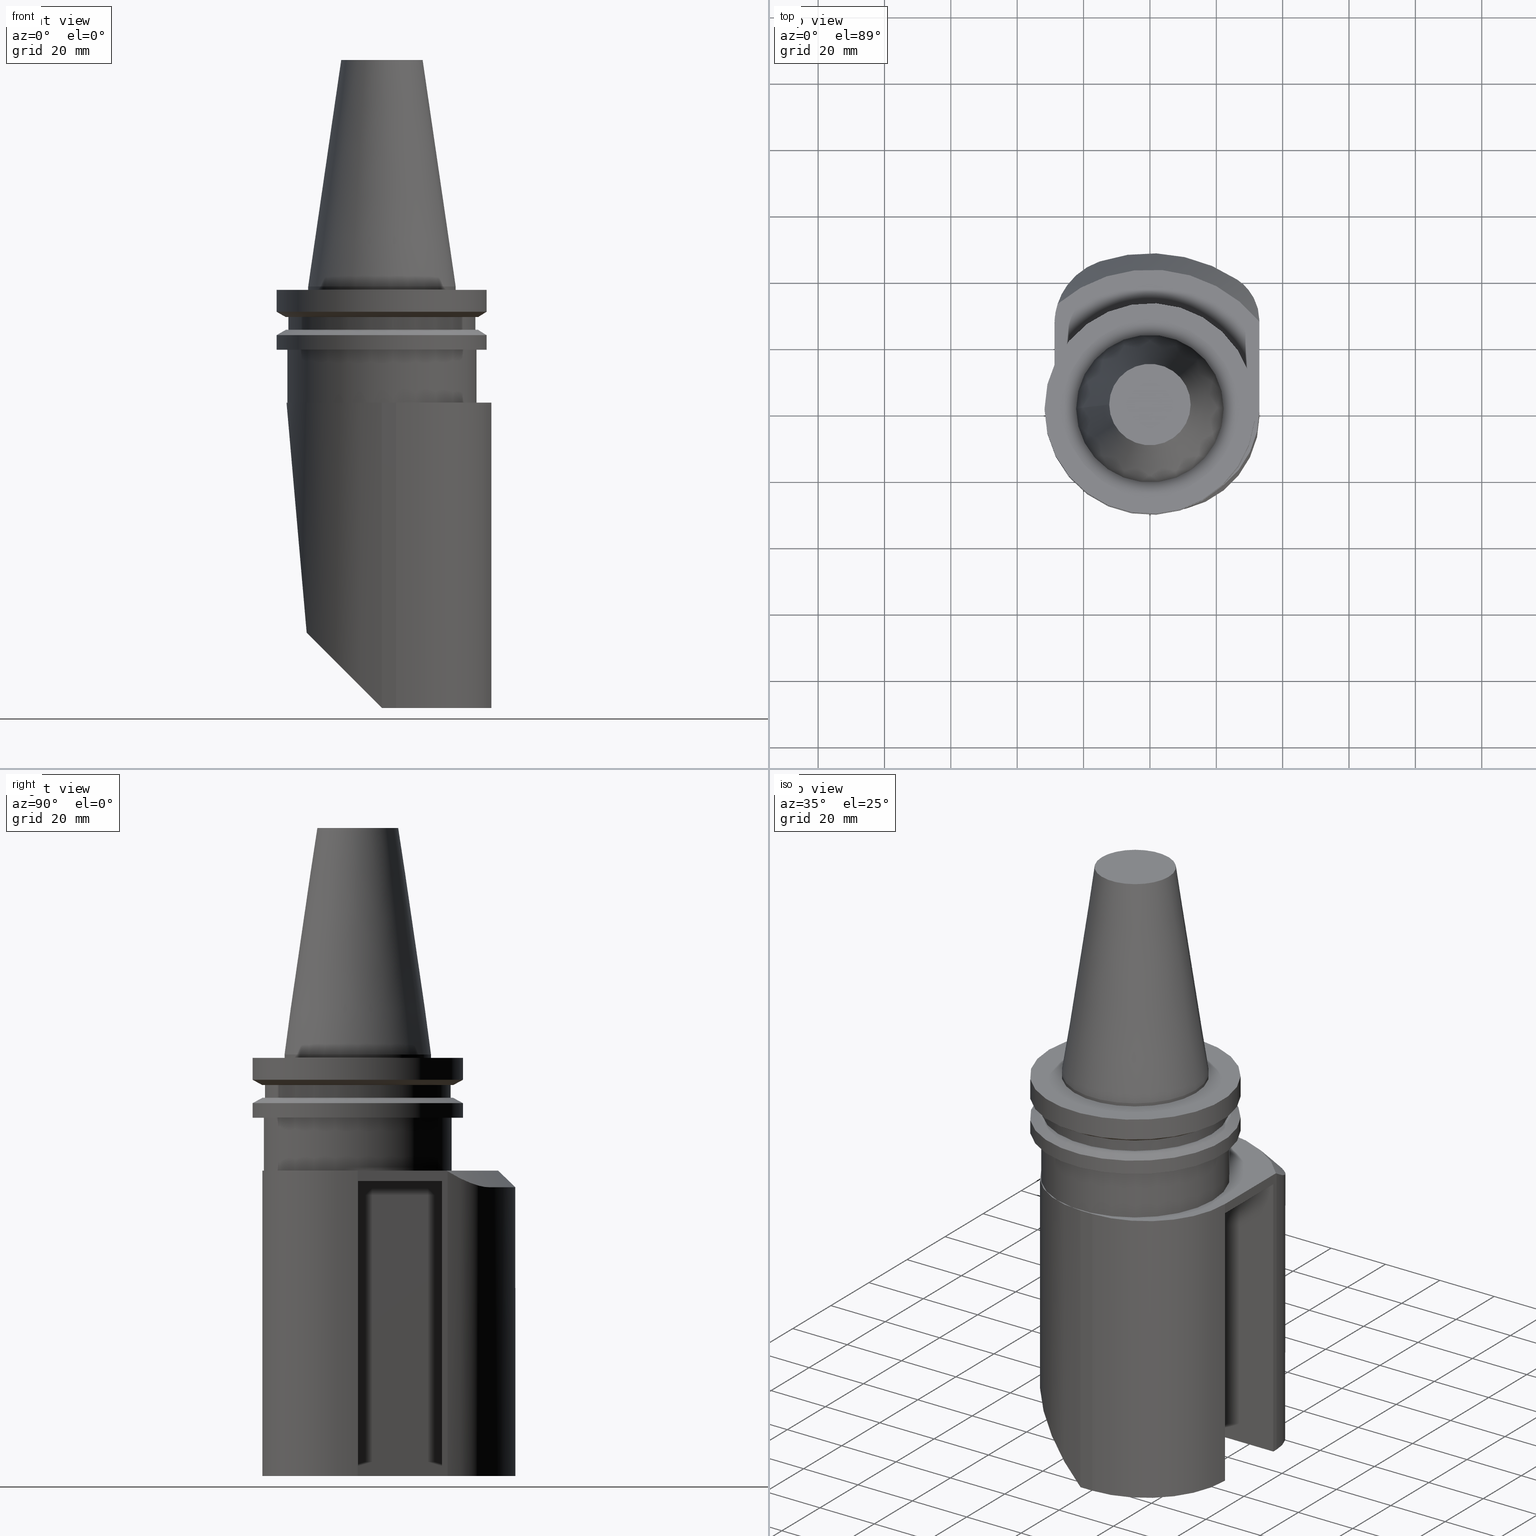
[diagram: canonical four-view strip — front | top / right | iso, engineering-drawing reading convention]
A machine part, canonical four-view strip (front | top / right | iso — engineering-drawing reading convention). The complete STEP part file that produces these views, byte-faithful:
ISO-10303-21;
HEADER;
FILE_DESCRIPTION((''),'1');
FILE_NAME('V:/01_Dxf_Field-HP\X2\FF71FF6FFF8CFF9F5916\X0\2013/BIGKAISER\X2\FF76FF80FF9BFF78FF9E63B28F095206\X0\_BKUS_201803/BCV40Y-180-BH/BCV40Y-180-BH1.000R-5.stp','2018-03-14T06:00:52',(''),(''),'Spatial Interop R21 SP3','Kubotek KeyCreator 2011 V10.0.2 (22737)',' ');
FILE_SCHEMA(('automotive_design'));
ENDSEC;
DATA;
#1=MECHANICAL_DESIGN_GEOMETRIC_PRESENTATION_REPRESENTATION(' ',(#10,#11,#12,#13,#14,#15,#16,#17,#18,#19,#20,#21,#22,#23,#24,#25,#26,#27,#28,#29,#30,#31,#32,#33,#34,#35,#36,#37,#38,#39,#40,#41,#42,#43,#44,#45,#46,#47,#48,#49,#50,#51,#52,#53,#54,#55,#56,#57,#58,#59,#60,#61,#62,#63,#64,#65,#66,#67,#68,#69,#70,#71,#72,#73,#74,#75,#76,#77,#78,#79,#80,#81,#82,#83,#84,#85,#86,#87,#88,#89,#90,#91,#92),#6);
#2=PRODUCT_DEFINITION_CONTEXT('',#93,'design');
#3=APPLICATION_PROTOCOL_DEFINITION('INTERNATIONAL STANDARD','automotive_design',1994,#93);
#4=PRODUCT_CATEGORY_RELATIONSHIP('NONE','NONE',#94,#95);
#5=SHAPE_DEFINITION_REPRESENTATION(#96,#97);
#6= (GEOMETRIC_REPRESENTATION_CONTEXT(3)GLOBAL_UNCERTAINTY_ASSIGNED_CONTEXT((#100))GLOBAL_UNIT_ASSIGNED_CONTEXT((#102,#103,#104))REPRESENTATION_CONTEXT('NONE','WORKSPACE'));
#10=STYLED_ITEM('',(#106),#107);
#11=STYLED_ITEM('',(#108),#109);
#12=STYLED_ITEM('',(#110),#111);
#13=STYLED_ITEM('',(#112),#113);
#14=STYLED_ITEM('',(#114,#115),#116);
#15=STYLED_ITEM('',(#117),#118);
#16=STYLED_ITEM('',(#119),#120);
#17=STYLED_ITEM('',(#121,#122),#123);
#18=STYLED_ITEM('',(#124),#125);
#19=STYLED_ITEM('',(#126),#127);
#20=STYLED_ITEM('',(#128),#129);
#21=STYLED_ITEM('',(#130,#131),#132);
#22=STYLED_ITEM('',(#133),#134);
#23=STYLED_ITEM('',(#135,#136),#137);
#24=STYLED_ITEM('',(#138,#139),#140);
#25=STYLED_ITEM('',(#141),#142);
#26=STYLED_ITEM('',(#143),#144);
#27=STYLED_ITEM('',(#145),#146);
#28=STYLED_ITEM('',(#147,#148),#149);
#29=STYLED_ITEM('',(#150),#151);
#30=STYLED_ITEM('',(#152,#153),#154);
#31=STYLED_ITEM('',(#155,#156),#157);
#32=STYLED_ITEM('',(#158,#159),#160);
#33=STYLED_ITEM('',(#161),#162);
#34=STYLED_ITEM('',(#163,#164),#165);
#35=STYLED_ITEM('',(#166),#167);
#36=STYLED_ITEM('',(#168,#169),#170);
#37=STYLED_ITEM('',(#171,#172),#173);
#38=STYLED_ITEM('',(#174),#175);
#39=STYLED_ITEM('',(#176),#177);
#40=STYLED_ITEM('',(#178,#179),#180);
#41=STYLED_ITEM('',(#181),#182);
#42=STYLED_ITEM('',(#183),#184);
#43=STYLED_ITEM('',(#185,#186),#187);
#44=STYLED_ITEM('',(#188,#189),#190);
#45=STYLED_ITEM('',(#191,#192),#193);
#46=STYLED_ITEM('',(#194),#195);
#47=STYLED_ITEM('',(#196,#197),#198);
#48=STYLED_ITEM('',(#199,#200),#201);
#49=STYLED_ITEM('',(#202),#203);
#50=STYLED_ITEM('',(#204),#205);
#51=STYLED_ITEM('',(#206,#207),#208);
#52=STYLED_ITEM('',(#209),#210);
#53=STYLED_ITEM('',(#211),#212);
#54=STYLED_ITEM('',(#213),#214);
#55=STYLED_ITEM('',(#215),#216);
#56=STYLED_ITEM('',(#217),#218);
#57=STYLED_ITEM('',(#219),#220);
#58=STYLED_ITEM('',(#221),#222);
#59=STYLED_ITEM('',(#223,#224),#225);
#60=STYLED_ITEM('',(#226,#227),#228);
#61=STYLED_ITEM('',(#229),#230);
#62=STYLED_ITEM('',(#231,#232),#233);
#63=STYLED_ITEM('',(#234),#235);
#64=STYLED_ITEM('',(#236),#237);
#65=STYLED_ITEM('',(#238,#239),#240);
#66=STYLED_ITEM('',(#241,#242),#243);
#67=STYLED_ITEM('',(#244,#245),#246);
#68=STYLED_ITEM('',(#247),#248);
#69=STYLED_ITEM('',(#249),#250);
#70=STYLED_ITEM('',(#251),#252);
#71=STYLED_ITEM('',(#253),#254);
#72=STYLED_ITEM('',(#255),#256);
#73=STYLED_ITEM('',(#257),#258);
#74=STYLED_ITEM('',(#259),#260);
#75=STYLED_ITEM('',(#261,#262),#263);
#76=STYLED_ITEM('',(#264,#265),#266);
#77=STYLED_ITEM('',(#267,#268),#269);
#78=STYLED_ITEM('',(#270),#271);
#79=STYLED_ITEM('',(#272),#273);
#80=STYLED_ITEM('',(#274),#275);
#81=STYLED_ITEM('',(#276),#277);
#82=STYLED_ITEM('',(#278),#279);
#83=STYLED_ITEM('',(#280),#281);
#84=STYLED_ITEM('',(#282),#283);
#85=STYLED_ITEM('',(#284),#285);
#86=STYLED_ITEM('',(#286),#287);
#87=STYLED_ITEM('',(#288),#289);
#88=STYLED_ITEM('',(#290,#291),#292);
#89=STYLED_ITEM('',(#293),#294);
#90=STYLED_ITEM('',(#295),#296);
#91=STYLED_ITEM('',(#297,#298),#299);
#92=STYLED_ITEM('',(#300),#301);
#93=APPLICATION_CONTEXT(' ');
#94=PRODUCT_CATEGORY('part','NONE');
#95=PRODUCT_RELATED_PRODUCT_CATEGORY('detail',' ',(#302));
#96=PRODUCT_DEFINITION_SHAPE('NONE','NONE',#303);
#97=ADVANCED_BREP_SHAPE_REPRESENTATION('Unnamed[1]',(#154,#304),#6);
#100=UNCERTAINTY_MEASURE_WITH_UNIT(LENGTH_MEASURE(1.0E-006),#102,'','');
#102= (CONVERSION_BASED_UNIT('MILLIMETRE',#307)LENGTH_UNIT()NAMED_UNIT(#310));
#103= (NAMED_UNIT(#312)PLANE_ANGLE_UNIT()SI_UNIT($,.RADIAN.));
#104= (NAMED_UNIT(#312)SOLID_ANGLE_UNIT()SI_UNIT($,.STERADIAN.));
#106=PRESENTATION_STYLE_ASSIGNMENT((#318));
#107=EDGE_CURVE('Unnamed[1]',#319,#320,#321,.T.);
#108=PRESENTATION_STYLE_ASSIGNMENT((#322));
#109=EDGE_CURVE('Unnamed[1]',#323,#324,#325,.T.);
#110=PRESENTATION_STYLE_ASSIGNMENT((#326));
#111=EDGE_CURVE('Unnamed[1]',#327,#327,#328,.T.);
#112=PRESENTATION_STYLE_ASSIGNMENT((#329));
#113=EDGE_CURVE('Unnamed[1]',#330,#331,#332,.T.);
#114=PRESENTATION_STYLE_ASSIGNMENT((#333));
#115=PRESENTATION_STYLE_ASSIGNMENT((#334));
#116=ADVANCED_FACE('Unnamed[1]',(#335),#336,.F.);
#117=PRESENTATION_STYLE_ASSIGNMENT((#337));
#118=EDGE_CURVE('Unnamed[1]',#338,#339,#340,.T.);
#119=PRESENTATION_STYLE_ASSIGNMENT((#341));
#120=EDGE_CURVE('Unnamed[1]',#342,#330,#343,.T.);
#121=PRESENTATION_STYLE_ASSIGNMENT((#344));
#122=PRESENTATION_STYLE_ASSIGNMENT((#345));
#123=ADVANCED_FACE('Unnamed[1]',(#346),#347,.T.);
#124=PRESENTATION_STYLE_ASSIGNMENT((#348));
#125=EDGE_CURVE('Unnamed[1]',#349,#349,#350,.T.);
#126=PRESENTATION_STYLE_ASSIGNMENT((#351));
#127=EDGE_CURVE('Unnamed[1]',#352,#353,#354,.T.);
#128=PRESENTATION_STYLE_ASSIGNMENT((#355));
#129=EDGE_CURVE('Unnamed[1]',#356,#356,#357,.T.);
#130=PRESENTATION_STYLE_ASSIGNMENT((#358));
#131=PRESENTATION_STYLE_ASSIGNMENT((#359));
#132=ADVANCED_FACE('Unnamed[1]',(#360),#361,.T.);
#133=PRESENTATION_STYLE_ASSIGNMENT((#362));
#134=EDGE_CURVE('Unnamed[1]',#363,#364,#365,.T.);
#135=PRESENTATION_STYLE_ASSIGNMENT((#366));
#136=PRESENTATION_STYLE_ASSIGNMENT((#367));
#137=ADVANCED_FACE('Unnamed[1]',(#368),#369,.F.);
#138=PRESENTATION_STYLE_ASSIGNMENT((#370));
#139=PRESENTATION_STYLE_ASSIGNMENT((#371));
#140=ADVANCED_FACE('Unnamed[1]',(#372),#373,.F.);
#141=PRESENTATION_STYLE_ASSIGNMENT((#374));
#142=EDGE_CURVE('Unnamed[1]',#375,#331,#376,.T.);
#143=PRESENTATION_STYLE_ASSIGNMENT((#377));
#144=EDGE_CURVE('Unnamed[1]',#378,#378,#379,.T.);
#145=PRESENTATION_STYLE_ASSIGNMENT((#380));
#146=EDGE_CURVE('Unnamed[1]',#381,#381,#382,.T.);
#147=PRESENTATION_STYLE_ASSIGNMENT((#383));
#148=PRESENTATION_STYLE_ASSIGNMENT((#384));
#149=ADVANCED_FACE('Unnamed[1]',(#385,#386),#387,.T.);
#150=PRESENTATION_STYLE_ASSIGNMENT((#388));
#151=EDGE_CURVE('Unnamed[1]',#352,#319,#389,.T.);
#152=PRESENTATION_STYLE_ASSIGNMENT((#390));
#153=PRESENTATION_STYLE_ASSIGNMENT((#391));
#154=MANIFOLD_SOLID_BREP('Unnamed[1]',#392);
#155=PRESENTATION_STYLE_ASSIGNMENT((#393));
#156=PRESENTATION_STYLE_ASSIGNMENT((#394));
#157=ADVANCED_FACE('Unnamed[1]',(#395,#396),#397,.T.);
#158=PRESENTATION_STYLE_ASSIGNMENT((#398));
#159=PRESENTATION_STYLE_ASSIGNMENT((#399));
#160=ADVANCED_FACE('Unnamed[1]',(#400,#401),#402,.T.);
#161=PRESENTATION_STYLE_ASSIGNMENT((#403));
#162=EDGE_CURVE('Unnamed[1]',#330,#404,#405,.T.);
#163=PRESENTATION_STYLE_ASSIGNMENT((#406));
#164=PRESENTATION_STYLE_ASSIGNMENT((#407));
#165=ADVANCED_FACE('Unnamed[1]',(#408),#409,.F.);
#166=PRESENTATION_STYLE_ASSIGNMENT((#410));
#167=EDGE_CURVE('Unnamed[1]',#411,#412,#413,.T.);
#168=PRESENTATION_STYLE_ASSIGNMENT((#414));
#169=PRESENTATION_STYLE_ASSIGNMENT((#415));
#170=ADVANCED_FACE('Unnamed[1]',(#416),#417,.T.);
#171=PRESENTATION_STYLE_ASSIGNMENT((#418));
#172=PRESENTATION_STYLE_ASSIGNMENT((#419));
#173=ADVANCED_FACE('Unnamed[1]',(#420,#421),#422,.T.);
#174=PRESENTATION_STYLE_ASSIGNMENT((#423));
#175=EDGE_CURVE('Unnamed[1]',#339,#375,#424,.T.);
#176=PRESENTATION_STYLE_ASSIGNMENT((#425));
#177=EDGE_CURVE('Unnamed[1]',#426,#352,#427,.T.);
#178=PRESENTATION_STYLE_ASSIGNMENT((#428));
#179=PRESENTATION_STYLE_ASSIGNMENT((#429));
#180=ADVANCED_FACE('Unnamed[1]',(#430,#431),#432,.T.);
#181=PRESENTATION_STYLE_ASSIGNMENT((#433));
#182=EDGE_CURVE('Unnamed[1]',#434,#339,#435,.T.);
#183=PRESENTATION_STYLE_ASSIGNMENT((#436));
#184=EDGE_CURVE('Unnamed[1]',#434,#437,#438,.T.);
#185=PRESENTATION_STYLE_ASSIGNMENT((#439));
#186=PRESENTATION_STYLE_ASSIGNMENT((#440));
#187=ADVANCED_FACE('Unnamed[1]',(#441),#442,.T.);
#188=PRESENTATION_STYLE_ASSIGNMENT((#443));
#189=PRESENTATION_STYLE_ASSIGNMENT((#444));
#190=ADVANCED_FACE('Unnamed[1]',(#445),#446,.F.);
#191=PRESENTATION_STYLE_ASSIGNMENT((#447));
#192=PRESENTATION_STYLE_ASSIGNMENT((#448));
#193=ADVANCED_FACE('Unnamed[1]',(#449,#450),#451,.T.);
#194=PRESENTATION_STYLE_ASSIGNMENT((#452));
#195=EDGE_CURVE('Unnamed[1]',#353,#323,#453,.T.);
#196=PRESENTATION_STYLE_ASSIGNMENT((#454));
#197=PRESENTATION_STYLE_ASSIGNMENT((#455));
#198=ADVANCED_FACE('Unnamed[1]',(#456,#457),#458,.T.);
#199=PRESENTATION_STYLE_ASSIGNMENT((#459));
#200=PRESENTATION_STYLE_ASSIGNMENT((#460));
#201=ADVANCED_FACE('Unnamed[1]',(#461,#462),#463,.T.);
#202=PRESENTATION_STYLE_ASSIGNMENT((#464));
#203=EDGE_CURVE('Unnamed[1]',#364,#338,#465,.T.);
#204=PRESENTATION_STYLE_ASSIGNMENT((#466));
#205=EDGE_CURVE('Unnamed[1]',#467,#375,#468,.T.);
#206=PRESENTATION_STYLE_ASSIGNMENT((#469));
#207=PRESENTATION_STYLE_ASSIGNMENT((#470));
#208=ADVANCED_FACE('Unnamed[1]',(#471),#472,.T.);
#209=PRESENTATION_STYLE_ASSIGNMENT((#473));
#210=EDGE_CURVE('Unnamed[1]',#474,#475,#476,.T.);
#211=PRESENTATION_STYLE_ASSIGNMENT((#477));
#212=EDGE_CURVE('Unnamed[1]',#353,#434,#478,.T.);
#213=PRESENTATION_STYLE_ASSIGNMENT((#479));
#214=EDGE_CURVE('Unnamed[1]',#437,#404,#480,.T.);
#215=PRESENTATION_STYLE_ASSIGNMENT((#481));
#216=EDGE_CURVE('Unnamed[1]',#324,#364,#482,.T.);
#217=PRESENTATION_STYLE_ASSIGNMENT((#483));
#218=EDGE_CURVE('Unnamed[1]',#475,#484,#485,.T.);
#219=PRESENTATION_STYLE_ASSIGNMENT((#486));
#220=EDGE_CURVE('Unnamed[1]',#487,#487,#488,.T.);
#221=PRESENTATION_STYLE_ASSIGNMENT((#489));
#222=EDGE_CURVE('Unnamed[1]',#404,#426,#490,.T.);
#223=PRESENTATION_STYLE_ASSIGNMENT((#491));
#224=PRESENTATION_STYLE_ASSIGNMENT((#492));
#225=ADVANCED_FACE('Unnamed[1]',(#493),#494,.T.);
#226=PRESENTATION_STYLE_ASSIGNMENT((#495));
#227=PRESENTATION_STYLE_ASSIGNMENT((#496));
#228=ADVANCED_FACE('Unnamed[1]',(#497,#498),#499,.T.);
#229=PRESENTATION_STYLE_ASSIGNMENT((#500));
#230=EDGE_CURVE('Unnamed[1]',#363,#501,#502,.T.);
#231=PRESENTATION_STYLE_ASSIGNMENT((#503));
#232=PRESENTATION_STYLE_ASSIGNMENT((#504));
#233=ADVANCED_FACE('Unnamed[1]',(#505),#506,.T.);
#234=PRESENTATION_STYLE_ASSIGNMENT((#507));
#235=EDGE_CURVE('Unnamed[1]',#475,#411,#508,.T.);
#236=PRESENTATION_STYLE_ASSIGNMENT((#509));
#237=EDGE_CURVE('Unnamed[1]',#412,#363,#510,.T.);
#238=PRESENTATION_STYLE_ASSIGNMENT((#511));
#239=PRESENTATION_STYLE_ASSIGNMENT((#512));
#240=ADVANCED_FACE('Unnamed[1]',(#513),#514,.F.);
#241=PRESENTATION_STYLE_ASSIGNMENT((#515));
#242=PRESENTATION_STYLE_ASSIGNMENT((#516));
#243=ADVANCED_FACE('Unnamed[1]',(#517,#518),#519,.T.);
#244=PRESENTATION_STYLE_ASSIGNMENT((#520));
#245=PRESENTATION_STYLE_ASSIGNMENT((#521));
#246=ADVANCED_FACE('Unnamed[1]',(#522,#523),#524,.T.);
#247=PRESENTATION_STYLE_ASSIGNMENT((#525));
#248=EDGE_CURVE('Unnamed[1]',#342,#526,#527,.T.);
#249=PRESENTATION_STYLE_ASSIGNMENT((#528));
#250=EDGE_CURVE('Unnamed[1]',#323,#338,#529,.T.);
#251=PRESENTATION_STYLE_ASSIGNMENT((#530));
#252=EDGE_CURVE('Unnamed[1]',#484,#467,#531,.T.);
#253=PRESENTATION_STYLE_ASSIGNMENT((#532));
#254=EDGE_CURVE('Unnamed[1]',#484,#526,#533,.T.);
#255=PRESENTATION_STYLE_ASSIGNMENT((#534));
#256=EDGE_CURVE('Unnamed[1]',#426,#320,#535,.T.);
#257=PRESENTATION_STYLE_ASSIGNMENT((#536));
#258=EDGE_CURVE('Unnamed[1]',#467,#412,#537,.T.);
#259=PRESENTATION_STYLE_ASSIGNMENT((#538));
#260=EDGE_CURVE('Unnamed[1]',#434,#319,#539,.T.);
#261=PRESENTATION_STYLE_ASSIGNMENT((#540));
#262=PRESENTATION_STYLE_ASSIGNMENT((#541));
#263=ADVANCED_FACE('Unnamed[1]',(#542),#543,.T.);
#264=PRESENTATION_STYLE_ASSIGNMENT((#544));
#265=PRESENTATION_STYLE_ASSIGNMENT((#545));
#266=ADVANCED_FACE('Unnamed[1]',(#546,#547),#548,.T.);
#267=PRESENTATION_STYLE_ASSIGNMENT((#549));
#268=PRESENTATION_STYLE_ASSIGNMENT((#550));
#269=ADVANCED_FACE('Unnamed[1]',(#551,#552),#553,.T.);
#270=PRESENTATION_STYLE_ASSIGNMENT((#554));
#271=EDGE_CURVE('Unnamed[1]',#555,#555,#556,.T.);
#272=PRESENTATION_STYLE_ASSIGNMENT((#557));
#273=EDGE_CURVE('Unnamed[1]',#324,#474,#558,.T.);
#274=PRESENTATION_STYLE_ASSIGNMENT((#559));
#275=EDGE_CURVE('Unnamed[1]',#560,#560,#561,.T.);
#276=PRESENTATION_STYLE_ASSIGNMENT((#562));
#277=EDGE_CURVE('Unnamed[1]',#563,#563,#564,.T.);
#278=PRESENTATION_STYLE_ASSIGNMENT((#565));
#279=EDGE_CURVE('Unnamed[1]',#331,#526,#566,.T.);
#280=PRESENTATION_STYLE_ASSIGNMENT((#567));
#281=EDGE_CURVE('Unnamed[1]',#568,#568,#569,.T.);
#282=PRESENTATION_STYLE_ASSIGNMENT((#570));
#283=EDGE_CURVE('Unnamed[1]',#474,#342,#571,.T.);
#284=PRESENTATION_STYLE_ASSIGNMENT((#572));
#285=EDGE_CURVE('Unnamed[1]',#501,#324,#573,.T.);
#286=PRESENTATION_STYLE_ASSIGNMENT((#574));
#287=EDGE_CURVE('Unnamed[1]',#575,#575,#576,.T.);
#288=PRESENTATION_STYLE_ASSIGNMENT((#577));
#289=EDGE_CURVE('Unnamed[1]',#578,#578,#579,.T.);
#290=PRESENTATION_STYLE_ASSIGNMENT((#580));
#291=PRESENTATION_STYLE_ASSIGNMENT((#581));
#292=ADVANCED_FACE('Unnamed[1]',(#582),#583,.T.);
#293=PRESENTATION_STYLE_ASSIGNMENT((#584));
#294=EDGE_CURVE('Unnamed[1]',#411,#501,#585,.T.);
#295=PRESENTATION_STYLE_ASSIGNMENT((#586));
#296=EDGE_CURVE('Unnamed[1]',#587,#587,#588,.T.);
#297=PRESENTATION_STYLE_ASSIGNMENT((#589));
#298=PRESENTATION_STYLE_ASSIGNMENT((#590));
#299=ADVANCED_FACE('Unnamed[1]',(#591),#592,.F.);
#300=PRESENTATION_STYLE_ASSIGNMENT((#593));
#301=EDGE_CURVE('Unnamed[1]',#320,#437,#594,.T.);
#302=PRODUCT('Unnamed[1]','Unnamed[1]','PART-Unnamed[1]-DESC',(#595));
#303=PRODUCT_DEFINITION('NONE','NONE',#596,#2);
#304=AXIS2_PLACEMENT_3D('',#597,#598,#599);
#307=LENGTH_MEASURE_WITH_UNIT(LENGTH_MEASURE(1.0),#600);
#310=DIMENSIONAL_EXPONENTS(1.0,0.0,0.0,0.0,0.0,0.0,0.0);
#312=DIMENSIONAL_EXPONENTS(0.0,0.0,0.0,0.0,0.0,0.0,0.0);
#318=CURVE_STYLE('',#601,POSITIVE_LENGTH_MEASURE(1000.0),#602);
#319=VERTEX_POINT('',#603);
#320=VERTEX_POINT('',#604);
#321=LINE('',#605,#606);
#322=CURVE_STYLE('',#607,POSITIVE_LENGTH_MEASURE(1000.0),#608);
#323=VERTEX_POINT('',#609);
#324=VERTEX_POINT('',#610);
#325=LINE('',#611,#612);
#326=CURVE_STYLE('',#613,POSITIVE_LENGTH_MEASURE(1000.0),#614);
#327=VERTEX_POINT('',#615);
#328=CIRCLE('',#616,28.5000000000001);
#329=CURVE_STYLE('',#617,POSITIVE_LENGTH_MEASURE(1000.0),#618);
#330=VERTEX_POINT('',#619);
#331=VERTEX_POINT('',#620);
#332=LINE('',#621,#622);
#333=SURFACE_STYLE_USAGE(.BOTH.,#623);
#334=CURVE_STYLE('',#624,POSITIVE_LENGTH_MEASURE(1000.0),#625);
#335=FACE_OUTER_BOUND('',#626,.T.);
#336=PLANE('',#627);
#337=CURVE_STYLE('',#628,POSITIVE_LENGTH_MEASURE(1000.0),#629);
#338=VERTEX_POINT('',#630);
#339=VERTEX_POINT('',#631);
#340=CIRCLE('',#632,28.75);
#341=CURVE_STYLE('',#633,POSITIVE_LENGTH_MEASURE(1000.0),#634);
#342=VERTEX_POINT('',#635);
#343=CIRCLE('',#636,15.0);
#344=SURFACE_STYLE_USAGE(.BOTH.,#637);
#345=CURVE_STYLE('',#638,POSITIVE_LENGTH_MEASURE(1000.0),#639);
#346=FACE_OUTER_BOUND('',#640,.T.);
#347=CYLINDRICAL_SURFACE('',#641,20.0);
#348=CURVE_STYLE('',#642,POSITIVE_LENGTH_MEASURE(1000.0),#643);
#349=VERTEX_POINT('',#644);
#350=CIRCLE('',#645,12.2718750014769);
#351=CURVE_STYLE('',#646,POSITIVE_LENGTH_MEASURE(1000.0),#647);
#352=VERTEX_POINT('',#648);
#353=VERTEX_POINT('',#649);
#354=LINE('',#650,#651);
#355=CURVE_STYLE('',#652,POSITIVE_LENGTH_MEASURE(1000.0),#653);
#356=VERTEX_POINT('',#654);
#357=CIRCLE('',#655,28.95591319);
#358=SURFACE_STYLE_USAGE(.BOTH.,#656);
#359=CURVE_STYLE('',#657,POSITIVE_LENGTH_MEASURE(1000.0),#658);
#360=FACE_OUTER_BOUND('',#659,.T.);
#361=PLANE('',#660);
#362=CURVE_STYLE('',#661,POSITIVE_LENGTH_MEASURE(1000.0),#662);
#363=VERTEX_POINT('',#663);
#364=VERTEX_POINT('',#664);
#365=CIRCLE('',#665,28.75);
#366=SURFACE_STYLE_USAGE(.BOTH.,#666);
#367=CURVE_STYLE('',#667,POSITIVE_LENGTH_MEASURE(1000.0),#668);
#368=FACE_OUTER_BOUND('',#669,.T.);
#369=PLANE('',#670);
#370=SURFACE_STYLE_USAGE(.BOTH.,#671);
#371=CURVE_STYLE('',#672,POSITIVE_LENGTH_MEASURE(1000.0),#673);
#372=FACE_OUTER_BOUND('',#674,.T.);
#373=PLANE('',#675);
#374=CURVE_STYLE('',#676,POSITIVE_LENGTH_MEASURE(1000.0),#677);
#375=VERTEX_POINT('',#678);
#376=(B_SPLINE_CURVE(2,(#680,#681,#682),.UNSPECIFIED.,.F.,.F.)B_SPLINE_CURVE_WITH_KNOTS((3,3),(0.0,8.91823131307164),.UNSPECIFIED.)RATIONAL_B_SPLINE_CURVE((1.0,1.00338228800818,1.0))BOUNDED_CURVE()REPRESENTATION_ITEM('')GEOMETRIC_REPRESENTATION_ITEM()CURVE());
#377=CURVE_STYLE('',#689,POSITIVE_LENGTH_MEASURE(1000.0),#690);
#378=VERTEX_POINT('',#691);
#379=CIRCLE('',#692,28.98016191);
#380=CURVE_STYLE('',#693,POSITIVE_LENGTH_MEASURE(1000.0),#694);
#381=VERTEX_POINT('',#695);
#382=CIRCLE('',#696,22.225);
#383=SURFACE_STYLE_USAGE(.BOTH.,#697);
#384=CURVE_STYLE('',#698,POSITIVE_LENGTH_MEASURE(1000.0),#699);
#385=FACE_BOUND('',#700,.T.);
#386=FACE_BOUND('',#701,.T.);
#387=CONICAL_SURFACE('',#702,30.352956595,1.04719755170464);
#388=CURVE_STYLE('',#703,POSITIVE_LENGTH_MEASURE(1000.0),#704);
#389=LINE('',#705,#706);
#390=SURFACE_STYLE_USAGE(.BOTH.,#707);
#391=CURVE_STYLE('',#708,POSITIVE_LENGTH_MEASURE(1000.0),#709);
#392=CLOSED_SHELL('',(#116,#240,#190,#208,#165,#263,#140,#137,#233,#225,#299,#123,#187,#170,#292,#193,#132,#160,#246,#228,#266,#198,#243,#269,#180,#149,#173,#201,#157));
#393=SURFACE_STYLE_USAGE(.BOTH.,#710);
#394=CURVE_STYLE('',#711,POSITIVE_LENGTH_MEASURE(1000.0),#712);
#395=FACE_OUTER_BOUND('',#713,.T.);
#396=FACE_BOUND('',#714,.T.);
#397=PLANE('',#715);
#398=SURFACE_STYLE_USAGE(.BOTH.,#716);
#399=CURVE_STYLE('',#717,POSITIVE_LENGTH_MEASURE(1000.0),#718);
#400=FACE_BOUND('',#719,.T.);
#401=FACE_BOUND('',#720,.T.);
#402=CONICAL_SURFACE('',#721,17.2484375007384,0.144812498217751);
#403=CURVE_STYLE('',#722,POSITIVE_LENGTH_MEASURE(1000.0),#723);
#404=VERTEX_POINT('',#724);
#405=LINE('',#725,#726);
#406=SURFACE_STYLE_USAGE(.BOTH.,#727);
#407=CURVE_STYLE('',#728,POSITIVE_LENGTH_MEASURE(1000.0),#729);
#408=FACE_OUTER_BOUND('',#730,.T.);
#409=PLANE('',#731);
#410=CURVE_STYLE('',#732,POSITIVE_LENGTH_MEASURE(1000.0),#733);
#411=VERTEX_POINT('',#734);
#412=VERTEX_POINT('',#735);
#413=ELLIPSE('',#736,229.474264913309,20.0);
#414=SURFACE_STYLE_USAGE(.BOTH.,#737);
#415=CURVE_STYLE('',#738,POSITIVE_LENGTH_MEASURE(1000.0),#739);
#416=FACE_OUTER_BOUND('',#740,.T.);
#417=CYLINDRICAL_SURFACE('',#741,28.75);
#418=SURFACE_STYLE_USAGE(.BOTH.,#742);
#419=CURVE_STYLE('',#743,POSITIVE_LENGTH_MEASURE(1000.0),#744);
#420=FACE_BOUND('',#745,.T.);
#421=FACE_BOUND('',#746,.T.);
#422=CYLINDRICAL_SURFACE('',#747,31.75);
#423=CURVE_STYLE('',#748,POSITIVE_LENGTH_MEASURE(1000.0),#749);
#424=LINE('',#750,#751);
#425=CURVE_STYLE('',#752,POSITIVE_LENGTH_MEASURE(1000.0),#753);
#426=VERTEX_POINT('',#754);
#427=LINE('',#755,#756);
#428=SURFACE_STYLE_USAGE(.BOTH.,#757);
#429=CURVE_STYLE('',#758,POSITIVE_LENGTH_MEASURE(1000.0),#759);
#430=FACE_OUTER_BOUND('',#760,.T.);
#431=FACE_BOUND('',#761,.T.);
#432=PLANE('',#762);
#433=CURVE_STYLE('',#763,POSITIVE_LENGTH_MEASURE(1000.0),#764);
#434=VERTEX_POINT('',#765);
#435=LINE('',#766,#767);
#436=CURVE_STYLE('',#768,POSITIVE_LENGTH_MEASURE(1000.0),#769);
#437=VERTEX_POINT('',#770);
#438=LINE('',#771,#772);
#439=SURFACE_STYLE_USAGE(.BOTH.,#773);
#440=CURVE_STYLE('',#774,POSITIVE_LENGTH_MEASURE(1000.0),#775);
#441=FACE_OUTER_BOUND('',#776,.T.);
#442=CYLINDRICAL_SURFACE('',#777,15.0);
#443=SURFACE_STYLE_USAGE(.BOTH.,#778);
#444=CURVE_STYLE('',#779,POSITIVE_LENGTH_MEASURE(1000.0),#780);
#445=FACE_OUTER_BOUND('',#781,.T.);
#446=PLANE('',#782);
#447=SURFACE_STYLE_USAGE(.BOTH.,#783);
#448=CURVE_STYLE('',#784,POSITIVE_LENGTH_MEASURE(1000.0),#785);
#449=FACE_OUTER_BOUND('',#786,.T.);
#450=FACE_BOUND('',#787,.T.);
#451=PLANE('',#788);
#452=CURVE_STYLE('',#789,POSITIVE_LENGTH_MEASURE(1000.0),#790);
#453=CIRCLE('',#791,28.75);
#454=SURFACE_STYLE_USAGE(.BOTH.,#792);
#455=CURVE_STYLE('',#793,POSITIVE_LENGTH_MEASURE(1000.0),#794);
#456=FACE_BOUND('',#795,.T.);
#457=FACE_BOUND('',#796,.T.);
#458=CONICAL_SURFACE('',#797,30.365080955,1.04719755034994);
#459=SURFACE_STYLE_USAGE(.BOTH.,#798);
#460=CURVE_STYLE('',#799,POSITIVE_LENGTH_MEASURE(1000.0),#800);
#461=FACE_BOUND('',#801,.T.);
#462=FACE_BOUND('',#802,.T.);
#463=CYLINDRICAL_SURFACE('',#803,28.5);
#464=CURVE_STYLE('',#804,POSITIVE_LENGTH_MEASURE(1000.0),#805);
#465=LINE('',#806,#807);
#466=CURVE_STYLE('',#808,POSITIVE_LENGTH_MEASURE(1000.0),#809);
#467=VERTEX_POINT('',#810);
#468=CIRCLE('',#811,42.4999999999998);
#469=SURFACE_STYLE_USAGE(.BOTH.,#812);
#470=CURVE_STYLE('',#813,POSITIVE_LENGTH_MEASURE(1000.0),#814);
#471=FACE_OUTER_BOUND('',#815,.T.);
#472=PLANE('',#816);
#473=CURVE_STYLE('',#817,POSITIVE_LENGTH_MEASURE(1000.0),#818);
#474=VERTEX_POINT('',#819);
#475=VERTEX_POINT('',#820);
#476=ELLIPSE('',#821,67.1751442127216,47.5);
#477=CURVE_STYLE('',#822,POSITIVE_LENGTH_MEASURE(1000.0),#823);
#478=LINE('',#824,#825);
#479=CURVE_STYLE('',#826,POSITIVE_LENGTH_MEASURE(1000.0),#827);
#480=LINE('',#828,#829);
#481=CURVE_STYLE('',#830,POSITIVE_LENGTH_MEASURE(1000.0),#831);
#482=LINE('',#832,#833);
#483=CURVE_STYLE('',#834,POSITIVE_LENGTH_MEASURE(1000.0),#835);
#484=VERTEX_POINT('',#836);
#485=LINE('',#837,#838);
#486=CURVE_STYLE('',#839,POSITIVE_LENGTH_MEASURE(1000.0),#840);
#487=VERTEX_POINT('',#841);
#488=CIRCLE('',#842,22.225);
#489=CURVE_STYLE('',#843,POSITIVE_LENGTH_MEASURE(1000.0),#844);
#490=LINE('',#845,#846);
#491=SURFACE_STYLE_USAGE(.BOTH.,#847);
#492=CURVE_STYLE('',#848,POSITIVE_LENGTH_MEASURE(1000.0),#849);
#493=FACE_OUTER_BOUND('',#850,.T.);
#494=CYLINDRICAL_SURFACE('',#851,47.5);
#495=SURFACE_STYLE_USAGE(.BOTH.,#852);
#496=CURVE_STYLE('',#853,POSITIVE_LENGTH_MEASURE(1000.0),#854);
#497=FACE_OUTER_BOUND('',#855,.T.);
#498=FACE_BOUND('',#856,.T.);
#499=PLANE('',#857);
#500=CURVE_STYLE('',#858,POSITIVE_LENGTH_MEASURE(1000.0),#859);
#501=VERTEX_POINT('',#860);
#502=ELLIPSE('',#861,329.869255812881,28.75);
#503=SURFACE_STYLE_USAGE(.BOTH.,#862);
#504=CURVE_STYLE('',#863,POSITIVE_LENGTH_MEASURE(1000.0),#864);
#505=FACE_OUTER_BOUND('',#865,.T.);
#506=CYLINDRICAL_SURFACE('',#866,28.75);
#507=CURVE_STYLE('',#867,POSITIVE_LENGTH_MEASURE(1000.0),#868);
#508=ELLIPSE('',#869,28.2842712474617,20.0);
#509=CURVE_STYLE('',#870,POSITIVE_LENGTH_MEASURE(1000.0),#871);
#510=LINE('',#872,#873);
#511=SURFACE_STYLE_USAGE(.BOTH.,#874);
#512=CURVE_STYLE('',#875,POSITIVE_LENGTH_MEASURE(1000.0),#876);
#513=FACE_OUTER_BOUND('',#877,.T.);
#514=PLANE('',#878);
#515=SURFACE_STYLE_USAGE(.BOTH.,#879);
#516=CURVE_STYLE('',#880,POSITIVE_LENGTH_MEASURE(1000.0),#881);
#517=FACE_BOUND('',#882,.T.);
#518=FACE_OUTER_BOUND('',#883,.T.);
#519=PLANE('',#884);
#520=SURFACE_STYLE_USAGE(.BOTH.,#885);
#521=CURVE_STYLE('',#886,POSITIVE_LENGTH_MEASURE(1000.0),#887);
#522=FACE_BOUND('',#888,.T.);
#523=FACE_BOUND('',#889,.T.);
#524=CYLINDRICAL_SURFACE('',#890,22.225);
#525=CURVE_STYLE('',#891,POSITIVE_LENGTH_MEASURE(1000.0),#892);
#526=VERTEX_POINT('',#893);
#527=LINE('',#894,#895);
#528=CURVE_STYLE('',#896,POSITIVE_LENGTH_MEASURE(1000.0),#897);
#529=LINE('',#898,#899);
#530=CURVE_STYLE('',#900,POSITIVE_LENGTH_MEASURE(1000.0),#901);
#531=B_SPLINE_CURVE_WITH_KNOTS('',3,(#902,#903,#904,#905,#906,#907,#908,#909,#910,#911,#912,#913,#914,#915,#916,#917,#918,#919,#920,#921),.UNSPECIFIED.,.F.,.F.,(4,2,2,2,2,2,2,2,2,4),(18.1733721077693,20.5831445480531,22.9929169883368,25.4026894286205,27.8124618689042,30.2222343091879,32.9582480059175,35.694261702647,38.4302753993766,41.1662890961061),.UNSPECIFIED.);
#532=CURVE_STYLE('',#922,POSITIVE_LENGTH_MEASURE(1000.0),#923);
#533=CIRCLE('',#924,47.5);
#534=CURVE_STYLE('',#925,POSITIVE_LENGTH_MEASURE(1000.0),#926);
#535=LINE('',#927,#928);
#536=CURVE_STYLE('',#929,POSITIVE_LENGTH_MEASURE(1000.0),#930);
#537=CIRCLE('',#931,20.0);
#538=CURVE_STYLE('',#932,POSITIVE_LENGTH_MEASURE(1000.0),#933);
#539=LINE('',#934,#935);
#540=SURFACE_STYLE_USAGE(.BOTH.,#936);
#541=CURVE_STYLE('',#937,POSITIVE_LENGTH_MEASURE(1000.0),#938);
#542=FACE_OUTER_BOUND('',#939,.T.);
#543=PLANE('',#940);
#544=SURFACE_STYLE_USAGE(.BOTH.,#941);
#545=CURVE_STYLE('',#942,POSITIVE_LENGTH_MEASURE(1000.0),#943);
#546=FACE_BOUND('',#944,.T.);
#547=FACE_BOUND('',#945,.T.);
#548=CYLINDRICAL_SURFACE('',#946,31.75);
#549=SURFACE_STYLE_USAGE(.BOTH.,#947);
#550=CURVE_STYLE('',#948,POSITIVE_LENGTH_MEASURE(1000.0),#949);
#551=FACE_BOUND('',#950,.T.);
#552=FACE_BOUND('',#951,.T.);
#553=CYLINDRICAL_SURFACE('',#952,28.18);
#554=CURVE_STYLE('',#953,POSITIVE_LENGTH_MEASURE(1000.0),#954);
#555=VERTEX_POINT('',#955);
#556=CIRCLE('',#956,31.75);
#557=CURVE_STYLE('',#957,POSITIVE_LENGTH_MEASURE(1000.0),#958);
#558=LINE('',#959,#960);
#559=CURVE_STYLE('',#961,POSITIVE_LENGTH_MEASURE(1000.0),#962);
#560=VERTEX_POINT('',#963);
#561=CIRCLE('',#964,28.18);
#562=CURVE_STYLE('',#965,POSITIVE_LENGTH_MEASURE(1000.0),#966);
#563=VERTEX_POINT('',#967);
#564=CIRCLE('',#968,31.75);
#565=CURVE_STYLE('',#969,POSITIVE_LENGTH_MEASURE(1000.0),#970);
#566=B_SPLINE_CURVE_WITH_KNOTS('',3,(#971,#972,#973,#974,#975,#976,#977,#978,#979,#980,#981,#982,#983,#984,#985,#986,#987,#988,#989,#990),.UNSPECIFIED.,.F.,.F.,(4,2,2,2,2,2,2,2,2,4),(0.0,2.31713104506848,4.63426209013695,6.95139313520543,9.2685241802739,11.1927934302076,13.1170626801412,15.0413319300749,16.9656011800086,18.8898704299422),.UNSPECIFIED.);
#567=CURVE_STYLE('',#991,POSITIVE_LENGTH_MEASURE(1000.0),#992);
#568=VERTEX_POINT('',#993);
#569=CIRCLE('',#994,28.18);
#570=CURVE_STYLE('',#995,POSITIVE_LENGTH_MEASURE(1000.0),#996);
#571=CIRCLE('',#997,47.5);
#572=CURVE_STYLE('',#998,POSITIVE_LENGTH_MEASURE(1000.0),#999);
#573=ELLIPSE('',#1000,40.6586399182262,28.75);
#574=CURVE_STYLE('',#1001,POSITIVE_LENGTH_MEASURE(1000.0),#1002);
#575=VERTEX_POINT('',#1003);
#576=CIRCLE('',#1004,28.4999999999999);
#577=CURVE_STYLE('',#1005,POSITIVE_LENGTH_MEASURE(1000.0),#1006);
#578=VERTEX_POINT('',#1007);
#579=CIRCLE('',#1008,31.75);
#580=SURFACE_STYLE_USAGE(.BOTH.,#1009);
#581=CURVE_STYLE('',#1010,POSITIVE_LENGTH_MEASURE(1000.0),#1011);
#582=FACE_OUTER_BOUND('',#1012,.T.);
#583=CONICAL_SURFACE('',#1013,44.9999999999999,0.785398163397465);
#584=CURVE_STYLE('',#1014,POSITIVE_LENGTH_MEASURE(1000.0),#1015);
#585=LINE('',#1016,#1017);
#586=CURVE_STYLE('',#1018,POSITIVE_LENGTH_MEASURE(1000.0),#1019);
#587=VERTEX_POINT('',#1020);
#588=CIRCLE('',#1021,31.75);
#589=SURFACE_STYLE_USAGE(.BOTH.,#1022);
#590=CURVE_STYLE('',#1023,POSITIVE_LENGTH_MEASURE(1000.0),#1024);
#591=FACE_OUTER_BOUND('',#1025,.T.);
#592=PLANE('',#1026);
#593=CURVE_STYLE('',#1027,POSITIVE_LENGTH_MEASURE(1000.0),#1028);
#594=LINE('',#1029,#1030);
#595=PRODUCT_CONTEXT('',#93,'mechanical');
#596=PRODUCT_DEFINITION_FORMATION_WITH_SPECIFIED_SOURCE(' ','NONE',#302,.NOT_KNOWN.);
#597=CARTESIAN_POINT('',(0.0,0.0,0.0));
#598=DIRECTION('',(0.0,0.0,1.0));
#599=DIRECTION('',(1.0,0.0,0.0));
#600= (NAMED_UNIT(#310)LENGTH_UNIT()SI_UNIT(.MILLI.,.METRE.));
#601=DRAUGHTING_PRE_DEFINED_CURVE_FONT('continuous');
#602=COLOUR_RGB('',0.0,1.0,0.0);
#603=CARTESIAN_POINT('',(7.60000000000019,8.15360787878083E-014,-38.0999999999998));
#604=CARTESIAN_POINT('',(7.60000000000057,25.4000000000001,-38.0999999999998));
#605=CARTESIAN_POINT('',(7.60000000000057,25.4000000000001,-38.0999999999998));
#606=VECTOR('',#1032,1.0);
#607=DRAUGHTING_PRE_DEFINED_CURVE_FONT('continuous');
#608=COLOUR_RGB('',0.0,1.0,0.0);
#609=CARTESIAN_POINT('',(4.2499999999996,-28.75,-126.999999999999));
#610=CARTESIAN_POINT('',(4.93396064135662E-013,-28.7499999999999,-126.999999999999));
#611=CARTESIAN_POINT('',(-10.8124999999997,-28.7499999999996,-126.999999999999));
#612=VECTOR('',#1033,1.0);
#613=DRAUGHTING_PRE_DEFINED_CURVE_FONT('continuous');
#614=COLOUR_RGB('',0.0,1.0,0.0);
#615=CARTESIAN_POINT('',(-28.4999999999999,4.06888899016707E-015,-19.05));
#616=AXIS2_PLACEMENT_3D('',#1034,#1035,#1036);
#617=DRAUGHTING_PRE_DEFINED_CURVE_FONT('continuous');
#618=COLOUR_RGB('',0.0,1.0,0.0);
#619=CARTESIAN_POINT('',(33.0000000000005,27.0601182554631,-126.999999999999));
#620=CARTESIAN_POINT('',(33.0000000000004,27.0601182554631,-35.1761057267374));
#621=CARTESIAN_POINT('',(33.0000000000005,27.0601182554631,-251.999999999994));
#622=VECTOR('',#1037,1.0);
#623=SURFACE_SIDE_STYLE('',(#1038));
#624=DRAUGHTING_PRE_DEFINED_CURVE_FONT('continuous');
#625=COLOUR_RGB('',0.0,1.0,0.0);
#626=EDGE_LOOP('',(#1039,#1040,#1041,#1042));
#627=AXIS2_PLACEMENT_3D('',#1043,#1044,#1045);
#628=DRAUGHTING_PRE_DEFINED_CURVE_FONT('continuous');
#629=COLOUR_RGB('',0.0,1.0,0.0);
#630=CARTESIAN_POINT('',(4.24999999999959,-28.75,-34.9999999999998));
#631=CARTESIAN_POINT('',(32.9999999999889,-5.46517334419185E-012,-34.9999999999997));
#632=AXIS2_PLACEMENT_3D('',#1046,#1047,#1048);
#633=DRAUGHTING_PRE_DEFINED_CURVE_FONT('continuous');
#634=COLOUR_RGB('',0.0,1.0,0.0);
#635=CARTESIAN_POINT('',(26.3076923076928,39.5494036041481,-126.999999999998));
#636=AXIS2_PLACEMENT_3D('',#1049,#1050,#1051);
#637=SURFACE_SIDE_STYLE('',(#1052));
#638=DRAUGHTING_PRE_DEFINED_CURVE_FONT('continuous');
#639=COLOUR_RGB('',0.0,1.0,0.0);
#640=EDGE_LOOP('',(#1053,#1054,#1055,#1056,#1057));
#641=AXIS2_PLACEMENT_3D('',#1058,#1059,#1060);
#642=DRAUGHTING_PRE_DEFINED_CURVE_FONT('continuous');
#643=COLOUR_RGB('',0.0,1.0,0.0);
#644=CARTESIAN_POINT('',(-12.2718750014769,6.43341406810461E-015,68.25));
#645=AXIS2_PLACEMENT_3D('',#1061,#1062,#1063);
#646=DRAUGHTING_PRE_DEFINED_CURVE_FONT('continuous');
#647=COLOUR_RGB('',0.0,1.0,0.0);
#648=CARTESIAN_POINT('',(7.6000000000002,7.60925237655984E-014,-126.999999999999));
#649=CARTESIAN_POINT('',(32.9999999999889,-5.47080671946793E-012,-126.999999999999));
#650=CARTESIAN_POINT('',(-1.72500000000203,1.40411586768512E-013,-126.999999999999));
#651=VECTOR('',#1064,1.0);
#652=DRAUGHTING_PRE_DEFINED_CURVE_FONT('continuous');
#653=COLOUR_RGB('',0.0,1.0,0.0);
#654=CARTESIAN_POINT('',(-28.9559131899999,4.52064524763422E-015,-13.04));
#655=AXIS2_PLACEMENT_3D('',#1065,#1066,#1067);
#656=SURFACE_SIDE_STYLE('',(#1068));
#657=DRAUGHTING_PRE_DEFINED_CURVE_FONT('continuous');
#658=COLOUR_RGB('',0.0,1.0,0.0);
#659=EDGE_LOOP('',(#1069));
#660=AXIS2_PLACEMENT_3D('',#1070,#1071,#1072);
#661=DRAUGHTING_PRE_DEFINED_CURVE_FONT('continuous');
#662=COLOUR_RGB('',0.0,1.0,0.0);
#663=CARTESIAN_POINT('',(-28.7499999999978,-5.74383932921566E-013,-34.9999999999998));
#664=CARTESIAN_POINT('',(4.82129313583507E-013,-28.7499999999999,-34.9999999999997));
#665=AXIS2_PLACEMENT_3D('',#1073,#1074,#1075);
#666=SURFACE_SIDE_STYLE('',(#1076));
#667=DRAUGHTING_PRE_DEFINED_CURVE_FONT('continuous');
#668=COLOUR_RGB('',0.0,1.0,0.0);
#669=EDGE_LOOP('',(#1077,#1078,#1079,#1080));
#670=AXIS2_PLACEMENT_3D('',#1081,#1082,#1083);
#671=SURFACE_SIDE_STYLE('',(#1084));
#672=DRAUGHTING_PRE_DEFINED_CURVE_FONT('continuous');
#673=COLOUR_RGB('',0.0,1.0,0.0);
#674=EDGE_LOOP('',(#1085,#1086,#1087,#1088,#1089));
#675=AXIS2_PLACEMENT_3D('',#1090,#1091,#1092);
#676=DRAUGHTING_PRE_DEFINED_CURVE_FONT('continuous');
#677=COLOUR_RGB('',0.0,1.0,0.0);
#678=CARTESIAN_POINT('',(33.0000000000003,26.7815234816836,-34.9999999999997));
#680=CARTESIAN_POINT('',(33.0000000000003,26.7815234816836,-34.9999999999997));
#681=CARTESIAN_POINT('',(33.0000000000018,30.2681843486404,-37.1971315266142));
#682=CARTESIAN_POINT('',(33.0000000000035,34.1650406117099,-39.9999999999999));
#689=DRAUGHTING_PRE_DEFINED_CURVE_FONT('continuous');
#690=COLOUR_RGB('',0.0,1.0,0.0);
#691=CARTESIAN_POINT('',(-28.9801619099999,4.76023185067023E-015,-9.20000000000004));
#692=AXIS2_PLACEMENT_3D('',#1093,#1094,#1095);
#693=DRAUGHTING_PRE_DEFINED_CURVE_FONT('continuous');
#694=COLOUR_RGB('',0.0,1.0,0.0);
#695=CARTESIAN_POINT('',(-22.2249999999999,4.08266626665747E-015,-2.97250658526004E-014));
#696=AXIS2_PLACEMENT_3D('',#1096,#1097,#1098);
#697=SURFACE_SIDE_STYLE('',(#1099));
#698=DRAUGHTING_PRE_DEFINED_CURVE_FONT('continuous');
#699=COLOUR_RGB('',0.0,1.0,0.0);
#700=EDGE_LOOP('',(#1100));
#701=EDGE_LOOP('',(#1101));
#702=AXIS2_PLACEMENT_3D('',#1102,#1103,#1104);
#703=DRAUGHTING_PRE_DEFINED_CURVE_FONT('continuous');
#704=COLOUR_RGB('',0.0,1.0,0.0);
#705=CARTESIAN_POINT('',(7.60000000000022,6.84384812709277E-014,-251.999999999994));
#706=VECTOR('',#1105,1.0);
#707=SURFACE_SIDE_STYLE('',(#1106));
#708=DRAUGHTING_PRE_DEFINED_CURVE_FONT('continuous');
#709=COLOUR_RGB('',0.0,1.0,0.0);
#710=SURFACE_SIDE_STYLE('',(#1107));
#711=DRAUGHTING_PRE_DEFINED_CURVE_FONT('continuous');
#712=COLOUR_RGB('',0.0,1.0,0.0);
#713=EDGE_LOOP('',(#1108,#1109,#1110,#1111,#1112,#1113,#1114));
#714=EDGE_LOOP('',(#1115));
#715=AXIS2_PLACEMENT_3D('',#1116,#1117,#1118);
#716=SURFACE_SIDE_STYLE('',(#1119));
#717=DRAUGHTING_PRE_DEFINED_CURVE_FONT('continuous');
#718=COLOUR_RGB('',0.0,1.0,0.0);
#719=EDGE_LOOP('',(#1120));
#720=EDGE_LOOP('',(#1121));
#721=AXIS2_PLACEMENT_3D('',#1122,#1123,#1124);
#722=DRAUGHTING_PRE_DEFINED_CURVE_FONT('continuous');
#723=COLOUR_RGB('',0.0,1.0,0.0);
#724=CARTESIAN_POINT('',(32.9999999999997,25.4,-126.999999999999));
#725=CARTESIAN_POINT('',(32.9999999999918,6.76502956385232,-126.999999999999));
#726=VECTOR('',#1125,1.0);
#727=SURFACE_SIDE_STYLE('',(#1126));
#728=DRAUGHTING_PRE_DEFINED_CURVE_FONT('continuous');
#729=COLOUR_RGB('',0.0,1.0,0.0);
#730=EDGE_LOOP('',(#1127,#1128,#1129,#1130,#1131,#1132,#1133));
#731=AXIS2_PLACEMENT_3D('',#1134,#1135,#1136);
#732=DRAUGHTING_PRE_DEFINED_CURVE_FONT('continuous');
#733=COLOUR_RGB('',0.0,1.0,0.0);
#734=CARTESIAN_POINT('',(-22.6857926342054,40.4163279417732,-104.314207365793));
#735=CARTESIAN_POINT('',(-28.7500000000002,26.0708170182673,-34.9999999999998));
#736=AXIS2_PLACEMENT_3D('',#1137,#1138,#1139);
#737=SURFACE_SIDE_STYLE('',(#1140));
#738=DRAUGHTING_PRE_DEFINED_CURVE_FONT('continuous');
#739=COLOUR_RGB('',0.0,1.0,0.0);
#740=EDGE_LOOP('',(#1141,#1142,#1143,#1144,#1145));
#741=AXIS2_PLACEMENT_3D('',#1146,#1147,#1148);
#742=SURFACE_SIDE_STYLE('',(#1149));
#743=DRAUGHTING_PRE_DEFINED_CURVE_FONT('continuous');
#744=COLOUR_RGB('',0.0,1.0,0.0);
#745=EDGE_LOOP('',(#1150));
#746=EDGE_LOOP('',(#1151));
#747=AXIS2_PLACEMENT_3D('',#1152,#1153,#1154);
#748=DRAUGHTING_PRE_DEFINED_CURVE_FONT('continuous');
#749=COLOUR_RGB('',0.0,1.0,0.0);
#750=CARTESIAN_POINT('',(32.9999999999918,6.76502956384983,-34.9999999999997));
#751=VECTOR('',#1155,1.0);
#752=DRAUGHTING_PRE_DEFINED_CURVE_FONT('continuous');
#753=COLOUR_RGB('',0.0,1.0,0.0);
#754=CARTESIAN_POINT('',(7.60000000000059,25.4000000000001,-126.999999999999));
#755=CARTESIAN_POINT('',(7.6000000000003,6.34999999999981,-126.999999999999));
#756=VECTOR('',#1156,1.0);
#757=SURFACE_SIDE_STYLE('',(#1157));
#758=DRAUGHTING_PRE_DEFINED_CURVE_FONT('continuous');
#759=COLOUR_RGB('',0.0,1.0,0.0);
#760=EDGE_LOOP('',(#1158));
#761=EDGE_LOOP('',(#1159));
#762=AXIS2_PLACEMENT_3D('',#1160,#1161,#1162);
#763=DRAUGHTING_PRE_DEFINED_CURVE_FONT('continuous');
#764=COLOUR_RGB('',0.0,1.0,0.0);
#765=CARTESIAN_POINT('',(32.9999999999889,-9.36600820993651E-014,-38.0999999999998));
#766=CARTESIAN_POINT('',(32.9999999999889,-5.4784607619626E-012,-251.999999999994));
#767=VECTOR('',#1163,1.0);
#768=DRAUGHTING_PRE_DEFINED_CURVE_FONT('continuous');
#769=COLOUR_RGB('',0.0,1.0,0.0);
#770=CARTESIAN_POINT('',(32.9999999999997,25.4000000000001,-38.0999999999998));
#771=CARTESIAN_POINT('',(32.9999999999918,6.76502956386171,-38.0999999999988));
#772=VECTOR('',#1164,1.0);
#773=SURFACE_SIDE_STYLE('',(#1165));
#774=DRAUGHTING_PRE_DEFINED_CURVE_FONT('continuous');
#775=COLOUR_RGB('',0.0,1.0,0.0);
#776=EDGE_LOOP('',(#1166,#1167,#1168,#1169));
#777=AXIS2_PLACEMENT_3D('',#1170,#1171,#1172);
#778=SURFACE_SIDE_STYLE('',(#1173));
#779=DRAUGHTING_PRE_DEFINED_CURVE_FONT('continuous');
#780=COLOUR_RGB('',0.0,1.0,0.0);
#781=EDGE_LOOP('',(#1174,#1175,#1176,#1177));
#782=AXIS2_PLACEMENT_3D('',#1178,#1179,#1180);
#783=SURFACE_SIDE_STYLE('',(#1181));
#784=DRAUGHTING_PRE_DEFINED_CURVE_FONT('continuous');
#785=COLOUR_RGB('',0.0,1.0,0.0);
#786=EDGE_LOOP('',(#1182));
#787=EDGE_LOOP('',(#1183));
#788=AXIS2_PLACEMENT_3D('',#1184,#1185,#1186);
#789=DRAUGHTING_PRE_DEFINED_CURVE_FONT('continuous');
#790=COLOUR_RGB('',0.0,1.0,0.0);
#791=AXIS2_PLACEMENT_3D('',#1187,#1188,#1189);
#792=SURFACE_SIDE_STYLE('',(#1190));
#793=DRAUGHTING_PRE_DEFINED_CURVE_FONT('continuous');
#794=COLOUR_RGB('',0.0,1.0,0.0);
#795=EDGE_LOOP('',(#1191));
#796=EDGE_LOOP('',(#1192));
#797=AXIS2_PLACEMENT_3D('',#1193,#1194,#1195);
#798=SURFACE_SIDE_STYLE('',(#1196));
#799=DRAUGHTING_PRE_DEFINED_CURVE_FONT('continuous');
#800=COLOUR_RGB('',0.0,1.0,0.0);
#801=EDGE_LOOP('',(#1197));
#802=EDGE_LOOP('',(#1198));
#803=AXIS2_PLACEMENT_3D('',#1199,#1200,#1201);
#804=DRAUGHTING_PRE_DEFINED_CURVE_FONT('continuous');
#805=COLOUR_RGB('',0.0,1.0,0.0);
#806=CARTESIAN_POINT('',(-16.6875000000003,-28.7499999999994,-34.9999999999998));
#807=VECTOR('',#1202,1.0);
#808=DRAUGHTING_PRE_DEFINED_CURVE_FONT('continuous');
#809=COLOUR_RGB('',0.0,1.0,0.0);
#810=CARTESIAN_POINT('',(-27.8065653048587,32.14101625566,-34.9999999999998));
#811=AXIS2_PLACEMENT_3D('',#1203,#1204,#1205);
#812=SURFACE_SIDE_STYLE('',(#1206));
#813=DRAUGHTING_PRE_DEFINED_CURVE_FONT('continuous');
#814=COLOUR_RGB('',0.0,1.0,0.0);
#815=EDGE_LOOP('',(#1207,#1208,#1209,#1210));
#816=AXIS2_PLACEMENT_3D('',#1211,#1212,#1213);
#817=DRAUGHTING_PRE_DEFINED_CURVE_FONT('continuous');
#818=COLOUR_RGB('',0.0,1.0,0.0);
#819=CARTESIAN_POINT('',(1.18598388089279E-015,47.5,-126.999999999998));
#820=CARTESIAN_POINT('',(-15.1136363636359,45.0314112133715,-111.886363636363));
#821=AXIS2_PLACEMENT_3D('',#1214,#1215,#1216);
#822=DRAUGHTING_PRE_DEFINED_CURVE_FONT('continuous');
#823=COLOUR_RGB('',0.0,1.0,0.0);
#824=CARTESIAN_POINT('',(32.9999999999889,-5.4784607619626E-012,-251.999999999994));
#825=VECTOR('',#1217,1.0);
#826=DRAUGHTING_PRE_DEFINED_CURVE_FONT('continuous');
#827=COLOUR_RGB('',0.0,1.0,0.0);
#828=CARTESIAN_POINT('',(32.9999999999998,25.4,-251.999999999994));
#829=VECTOR('',#1218,1.0);
#830=DRAUGHTING_PRE_DEFINED_CURVE_FONT('continuous');
#831=COLOUR_RGB('',0.0,1.0,0.0);
#832=CARTESIAN_POINT('',(5.08704149125004E-013,-28.7499999999999,-251.999999999994));
#833=VECTOR('',#1219,1.0);
#834=DRAUGHTING_PRE_DEFINED_CURVE_FONT('continuous');
#835=COLOUR_RGB('',0.0,1.0,0.0);
#836=CARTESIAN_POINT('',(-15.113636363637,45.0314112133712,-39.9999999999997));
#837=CARTESIAN_POINT('',(-15.1136363636359,45.0314112133715,-251.999999999994));
#838=VECTOR('',#1220,1.0);
#839=DRAUGHTING_PRE_DEFINED_CURVE_FONT('continuous');
#840=COLOUR_RGB('',0.0,1.0,0.0);
#841=CARTESIAN_POINT('',(-22.2249999999999,4.0214339267001E-015,-1.00000000000003));
#842=AXIS2_PLACEMENT_3D('',#1221,#1222,#1223);
#843=DRAUGHTING_PRE_DEFINED_CURVE_FONT('continuous');
#844=COLOUR_RGB('',0.0,1.0,0.0);
#845=CARTESIAN_POINT('',(-1.7249999999992,25.4000000000001,-126.999999999999));
#846=VECTOR('',#1224,1.0);
#847=SURFACE_SIDE_STYLE('',(#1225));
#848=DRAUGHTING_PRE_DEFINED_CURVE_FONT('continuous');
#849=COLOUR_RGB('',0.0,1.0,0.0);
#850=EDGE_LOOP('',(#1226,#1227,#1228,#1229,#1230));
#851=AXIS2_PLACEMENT_3D('',#1231,#1232,#1233);
#852=SURFACE_SIDE_STYLE('',(#1234));
#853=DRAUGHTING_PRE_DEFINED_CURVE_FONT('continuous');
#854=COLOUR_RGB('',0.0,1.0,0.0);
#855=EDGE_LOOP('',(#1235));
#856=EDGE_LOOP('',(#1236));
#857=AXIS2_PLACEMENT_3D('',#1237,#1238,#1239);
#858=DRAUGHTING_PRE_DEFINED_CURVE_FONT('continuous');
#859=COLOUR_RGB('',0.0,1.0,0.0);
#860=CARTESIAN_POINT('',(-22.6857926342054,-17.6611809502573,-104.314207365793));
#861=AXIS2_PLACEMENT_3D('',#1240,#1241,#1242);
#862=SURFACE_SIDE_STYLE('',(#1243));
#863=DRAUGHTING_PRE_DEFINED_CURVE_FONT('continuous');
#864=COLOUR_RGB('',0.0,1.0,0.0);
#865=EDGE_LOOP('',(#1244,#1245,#1246,#1247));
#866=AXIS2_PLACEMENT_3D('',#1248,#1249,#1250);
#867=DRAUGHTING_PRE_DEFINED_CURVE_FONT('continuous');
#868=COLOUR_RGB('',0.0,1.0,0.0);
#869=AXIS2_PLACEMENT_3D('',#1251,#1252,#1253);
#870=DRAUGHTING_PRE_DEFINED_CURVE_FONT('continuous');
#871=COLOUR_RGB('',0.0,1.0,0.0);
#872=CARTESIAN_POINT('',(-28.7499999999998,6.51770425456675,-34.9999999999998));
#873=VECTOR('',#1254,1.0);
#874=SURFACE_SIDE_STYLE('',(#1255));
#875=DRAUGHTING_PRE_DEFINED_CURVE_FONT('continuous');
#876=COLOUR_RGB('',0.0,1.0,0.0);
#877=EDGE_LOOP('',(#1256,#1257,#1258,#1259));
#878=AXIS2_PLACEMENT_3D('',#1260,#1261,#1262);
#879=SURFACE_SIDE_STYLE('',(#1263));
#880=DRAUGHTING_PRE_DEFINED_CURVE_FONT('continuous');
#881=COLOUR_RGB('',0.0,1.0,0.0);
#882=EDGE_LOOP('',(#1264));
#883=EDGE_LOOP('',(#1265));
#884=AXIS2_PLACEMENT_3D('',#1266,#1267,#1268);
#885=SURFACE_SIDE_STYLE('',(#1269));
#886=DRAUGHTING_PRE_DEFINED_CURVE_FONT('continuous');
#887=COLOUR_RGB('',0.0,1.0,0.0);
#888=EDGE_LOOP('',(#1270));
#889=EDGE_LOOP('',(#1271));
#890=AXIS2_PLACEMENT_3D('',#1272,#1273,#1274);
#891=DRAUGHTING_PRE_DEFINED_CURVE_FONT('continuous');
#892=COLOUR_RGB('',0.0,1.0,0.0);
#893=CARTESIAN_POINT('',(26.3076923076936,39.5494036041475,-40.0000000000001));
#894=CARTESIAN_POINT('',(26.3076923076928,39.5494036041481,-251.999999999994));
#895=VECTOR('',#1275,1.0);
#896=DRAUGHTING_PRE_DEFINED_CURVE_FONT('continuous');
#897=COLOUR_RGB('',0.0,1.0,0.0);
#898=CARTESIAN_POINT('',(4.24999999999962,-28.75,-251.999999999994));
#899=VECTOR('',#1276,1.0);
#900=DRAUGHTING_PRE_DEFINED_CURVE_FONT('continuous');
#901=COLOUR_RGB('',0.0,1.0,0.0);
#902=CARTESIAN_POINT('',(-12.7106299339931,45.6747301614632,-39.9103479067744));
#903=CARTESIAN_POINT('',(-13.5434203107198,45.5064793397651,-39.9715260996951));
#904=CARTESIAN_POINT('',(-14.352124407923,45.2869931388562,-39.9999999999997));
#905=CARTESIAN_POINT('',(-15.8751483193485,44.775829287887,-39.9999999999997));
#906=CARTESIAN_POINT('',(-16.6525207343032,44.4629896521465,-39.9715260996951));
#907=CARTESIAN_POINT('',(-18.1838644241212,43.7265257318237,-39.8491697138537));
#908=CARTESIAN_POINT('',(-18.9378363390828,43.302903111086,-39.7552852247495));
#909=CARTESIAN_POINT('',(-20.3768057875867,42.3666504685005,-39.5045338715849));
#910=CARTESIAN_POINT('',(-21.0624928919897,41.8536171706143,-39.3475489323945));
#911=CARTESIAN_POINT('',(-22.332608377293,40.774796463864,-38.982990302744));
#912=CARTESIAN_POINT('',(-22.917081308468,40.2090615635942,-38.7754164417215));
#913=CARTESIAN_POINT('',(-24.0358463098912,38.9979743957243,-38.3023872367762));
#914=CARTESIAN_POINT('',(-24.6059566811889,38.294414030016,-38.010390625103));
#915=CARTESIAN_POINT('',(-25.6502464083427,36.8043792200916,-37.3528469032119));
#916=CARTESIAN_POINT('',(-26.1244866414636,36.0179542840409,-36.9872842901647));
#917=CARTESIAN_POINT('',(-26.9515381624492,34.4088228788508,-36.1999900215929));
#918=CARTESIAN_POINT('',(-27.3047630489511,33.5855242153283,-35.7779244698648));
#919=CARTESIAN_POINT('',(-27.8849066979617,31.9534526312042,-34.9032119188622));
#920=CARTESIAN_POINT('',(-28.1119271033193,31.1447244821378,-34.4505488002944));
#921=CARTESIAN_POINT('',(-28.2823901228725,30.3703211859475,-33.9999999999997));
#922=DRAUGHTING_PRE_DEFINED_CURVE_FONT('continuous');
#923=COLOUR_RGB('',0.0,1.0,0.0);
#924=AXIS2_PLACEMENT_3D('',#1277,#1278,#1279);
#925=DRAUGHTING_PRE_DEFINED_CURVE_FONT('continuous');
#926=COLOUR_RGB('',0.0,1.0,0.0);
#927=CARTESIAN_POINT('',(7.6000000000006,25.4000000000001,-251.999999999994));
#928=VECTOR('',#1280,1.0);
#929=DRAUGHTING_PRE_DEFINED_CURVE_FONT('continuous');
#930=COLOUR_RGB('',0.0,1.0,0.0);
#931=AXIS2_PLACEMENT_3D('',#1281,#1282,#1283);
#932=DRAUGHTING_PRE_DEFINED_CURVE_FONT('continuous');
#933=COLOUR_RGB('',0.0,1.0,0.0);
#934=CARTESIAN_POINT('',(7.60000000000019,8.15360787878083E-014,-38.0999999999998));
#935=VECTOR('',#1284,1.0);
#936=SURFACE_SIDE_STYLE('',(#1285));
#937=DRAUGHTING_PRE_DEFINED_CURVE_FONT('continuous');
#938=COLOUR_RGB('',0.0,1.0,0.0);
#939=EDGE_LOOP('',(#1286,#1287,#1288,#1289,#1290,#1291,#1292,#1293,#1294));
#940=AXIS2_PLACEMENT_3D('',#1295,#1296,#1297);
#941=SURFACE_SIDE_STYLE('',(#1298));
#942=DRAUGHTING_PRE_DEFINED_CURVE_FONT('continuous');
#943=COLOUR_RGB('',0.0,1.0,0.0);
#944=EDGE_LOOP('',(#1299));
#945=EDGE_LOOP('',(#1300));
#946=AXIS2_PLACEMENT_3D('',#1301,#1302,#1303);
#947=SURFACE_SIDE_STYLE('',(#1304));
#948=DRAUGHTING_PRE_DEFINED_CURVE_FONT('continuous');
#949=COLOUR_RGB('',0.0,1.0,0.0);
#950=EDGE_LOOP('',(#1305));
#951=EDGE_LOOP('',(#1306));
#952=AXIS2_PLACEMENT_3D('',#1307,#1308,#1309);
#953=DRAUGHTING_PRE_DEFINED_CURVE_FONT('continuous');
#954=COLOUR_RGB('',0.0,1.0,0.0);
#955=CARTESIAN_POINT('',(-31.7499999999999,5.36696357664063E-015,-7.60083323000005));
#956=AXIS2_PLACEMENT_3D('',#1310,#1311,#1312);
#957=DRAUGHTING_PRE_DEFINED_CURVE_FONT('continuous');
#958=COLOUR_RGB('',0.0,1.0,0.0);
#959=CARTESIAN_POINT('',(4.72076722075036E-013,-7.7765071745857E-015,-126.999999999999));
#960=VECTOR('',#1313,1.0);
#961=DRAUGHTING_PRE_DEFINED_CURVE_FONT('continuous');
#962=COLOUR_RGB('',0.0,1.0,0.0);
#963=CARTESIAN_POINT('',(-28.1799999999999,4.61324449238806E-015,-9.20000000000004));
#964=AXIS2_PLACEMENT_3D('',#1314,#1315,#1316);
#965=DRAUGHTING_PRE_DEFINED_CURVE_FONT('continuous');
#966=COLOUR_RGB('',0.0,1.0,0.0);
#967=CARTESIAN_POINT('',(-31.7499999999999,4.9351326918266E-015,-14.65316677));
#968=AXIS2_PLACEMENT_3D('',#1317,#1318,#1319);
#969=DRAUGHTING_PRE_DEFINED_CURVE_FONT('continuous');
#970=COLOUR_RGB('',0.0,1.0,0.0);
#971=CARTESIAN_POINT('',(32.8963516166487,25.2998033651213,-33.9999999999998));
#972=CARTESIAN_POINT('',(32.9706624670413,25.9286457173906,-34.4422685234581));
#973=CARTESIAN_POINT('',(33.0091130945929,26.6004887120797,-34.8897660379062));
#974=CARTESIAN_POINT('',(32.9871574416228,27.9927741387302,-35.7602898487478));
#975=CARTESIAN_POINT('',(32.926647546514,28.7132110524868,-36.1833223543783));
#976=CARTESIAN_POINT('',(32.694286719985,30.1609978163678,-36.977210107385));
#977=CARTESIAN_POINT('',(32.5222319306773,30.8889478824451,-37.3484120768559));
#978=CARTESIAN_POINT('',(32.0713058296032,32.3092618798024,-38.0193854925313));
#979=CARTESIAN_POINT('',(31.792332279631,33.0015939128418,-38.3191557475924));
#980=CARTESIAN_POINT('',(31.2066718930746,34.1979773107649,-38.7929694186086));
#981=CARTESIAN_POINT('',(30.8930040724437,34.7543097107661,-38.9956078176611));
#982=CARTESIAN_POINT('',(30.1722574027573,35.8502425936738,-39.3530341925201));
#983=CARTESIAN_POINT('',(29.7651159342275,36.3898051086311,-39.5078123094619));
#984=CARTESIAN_POINT('',(28.8741108184278,37.4145725327184,-39.7558873483393));
#985=CARTESIAN_POINT('',(28.389706330501,37.9003253045604,-39.8493159593943));
#986=CARTESIAN_POINT('',(27.3735326250312,38.790121351315,-39.97137496347));
#987=CARTESIAN_POINT('',(26.8417533688063,39.1941538964679,-40.0000000000001));
#988=CARTESIAN_POINT('',(25.7736312465793,39.904653311828,-40.0000000000001));
#989=CARTESIAN_POINT('',(25.1954604105215,40.2389435438511,-39.97137496347));
#990=CARTESIAN_POINT('',(24.5887572530297,40.5355877411929,-39.9103454614321));
#991=DRAUGHTING_PRE_DEFINED_CURVE_FONT('continuous');
#992=COLOUR_RGB('',0.0,1.0,0.0);
#993=CARTESIAN_POINT('',(-28.1799999999999,4.37811230695177E-015,-13.04));
#994=AXIS2_PLACEMENT_3D('',#1320,#1321,#1322);
#995=DRAUGHTING_PRE_DEFINED_CURVE_FONT('continuous');
#996=COLOUR_RGB('',0.0,1.0,0.0);
#997=AXIS2_PLACEMENT_3D('',#1323,#1324,#1325);
#998=DRAUGHTING_PRE_DEFINED_CURVE_FONT('continuous');
#999=COLOUR_RGB('',0.0,1.0,0.0);
#1000=AXIS2_PLACEMENT_3D('',#1326,#1327,#1328);
#1001=DRAUGHTING_PRE_DEFINED_CURVE_FONT('continuous');
#1002=COLOUR_RGB('',0.0,1.0,0.0);
#1003=CARTESIAN_POINT('',(-28.4999999999998,3.09223316784704E-015,-34.9999999999998));
#1004=AXIS2_PLACEMENT_3D('',#1329,#1330,#1331);
#1005=DRAUGHTING_PRE_DEFINED_CURVE_FONT('continuous');
#1006=COLOUR_RGB('',0.0,1.0,0.0);
#1007=CARTESIAN_POINT('',(-31.7499999999999,4.66590430475139E-015,-19.05));
#1008=AXIS2_PLACEMENT_3D('',#1332,#1333,#1334);
#1009=SURFACE_SIDE_STYLE('',(#1335));
#1010=DRAUGHTING_PRE_DEFINED_CURVE_FONT('continuous');
#1011=COLOUR_RGB('',0.0,1.0,0.0);
#1012=EDGE_LOOP('',(#1336,#1337,#1338,#1339,#1340));
#1013=AXIS2_PLACEMENT_3D('',#1341,#1342,#1343);
#1014=DRAUGHTING_PRE_DEFINED_CURVE_FONT('continuous');
#1015=COLOUR_RGB('',0.0,1.0,0.0);
#1016=CARTESIAN_POINT('',(-22.6857926342054,-2.22009050746556E-015,-104.314207365793));
#1017=VECTOR('',#1344,1.0);
#1018=DRAUGHTING_PRE_DEFINED_CURVE_FONT('continuous');
#1019=COLOUR_RGB('',0.0,1.0,0.0);
#1020=CARTESIAN_POINT('',(-31.7499999999999,5.77114804098188E-015,-1.00000000000004));
#1021=AXIS2_PLACEMENT_3D('',#1345,#1346,#1347);
#1022=SURFACE_SIDE_STYLE('',(#1348));
#1023=DRAUGHTING_PRE_DEFINED_CURVE_FONT('continuous');
#1024=COLOUR_RGB('',0.0,1.0,0.0);
#1025=EDGE_LOOP('',(#1349,#1350,#1351,#1352));
#1026=AXIS2_PLACEMENT_3D('',#1353,#1354,#1355);
#1027=DRAUGHTING_PRE_DEFINED_CURVE_FONT('continuous');
#1028=COLOUR_RGB('',0.0,1.0,0.0);
#1029=CARTESIAN_POINT('',(32.9999999999997,25.4000000000001,-38.0999999999998));
#1030=VECTOR('',#1356,1.0);
#1032=DIRECTION('',(1.50099824510868E-014,1.0,-6.12323399573659E-017));
#1033=DIRECTION('',(-1.0,2.69335411896641E-014,8.85281198231811E-015));
#1034=CARTESIAN_POINT('',(1.09617107857845E-013,-1.16647607618788E-015,-19.05));
#1035=DIRECTION('',(1.33746078076942E-015,-6.12323399573679E-017,-1.0));
#1036=DIRECTION('',(-1.0,1.83697019872103E-016,-1.33746078076942E-015));
#1037=DIRECTION('',(-1.22464679914735E-016,6.12323399573677E-017,1.0));
#1038=SURFACE_STYLE_FILL_AREA(#1357);
#1039=ORIENTED_EDGE('',*,*,#127,.F.);
#1040=ORIENTED_EDGE('',*,*,#151,.T.);
#1041=ORIENTED_EDGE('',*,*,#260,.F.);
#1042=ORIENTED_EDGE('',*,*,#212,.F.);
#1043=CARTESIAN_POINT('',(20.2999999999946,-1.9159599172659E-014,-251.999999999994));
#1044=DIRECTION('',(-6.89748664910438E-015,-1.0,6.12323399573668E-017));
#1045=DIRECTION('',(-1.0,6.89748664910438E-015,-1.22464679914736E-016));
#1046=CARTESIAN_POINT('',(4.2500000000004,-2.92384423296437E-015,-34.9999999999998));
#1047=DIRECTION('',(-1.1375257310006E-015,6.12323399573679E-017,1.0));
#1048=DIRECTION('',(3.06161699786838E-016,1.0,-6.12323399573675E-017));
#1049=CARTESIAN_POINT('',(18.0000000000004,27.0601182554697,-126.999999999998));
#1050=DIRECTION('',(-8.85281198231811E-015,-6.1232339957366E-017,-1.0));
#1051=DIRECTION('',(3.06161699786838E-016,1.0,-6.12323399573688E-017));
#1052=SURFACE_STYLE_FILL_AREA(#1358);
#1053=ORIENTED_EDGE('',*,*,#167,.T.);
#1054=ORIENTED_EDGE('',*,*,#258,.F.);
#1055=ORIENTED_EDGE('',*,*,#252,.F.);
#1056=ORIENTED_EDGE('',*,*,#218,.F.);
#1057=ORIENTED_EDGE('',*,*,#235,.T.);
#1058=CARTESIAN_POINT('',(-8.74999999999954,26.0708170182677,-251.999999999994));
#1059=DIRECTION('',(-1.22464679914735E-016,6.12323399573677E-017,1.0));
#1060=DIRECTION('',(3.06161699786838E-016,1.0,-6.12323399573676E-017));
#1061=CARTESIAN_POINT('',(-7.14321830332606E-015,4.17910720209035E-015,68.25));
#1062=DIRECTION('',(1.33746078076942E-015,-6.12323399573679E-017,-1.0));
#1063=DIRECTION('',(-1.0,1.83697019872103E-016,-1.33746078076942E-015));
#1064=DIRECTION('',(1.0,-6.89748664910438E-015,-8.85281198231811E-015));
#1065=CARTESIAN_POINT('',(1.0157896856542E-013,-7.98469713044093E-016,-13.04));
#1066=DIRECTION('',(1.33746078076942E-015,-6.12323399573679E-017,-1.0));
#1067=DIRECTION('',(-1.0,1.83697019872103E-016,-1.33746078076942E-015));
#1068=SURFACE_STYLE_FILL_AREA(#1359);
#1069=ORIENTED_EDGE('',*,*,#125,.F.);
#1070=CARTESIAN_POINT('',(-6.13593750073844,5.30626063509748E-015,68.25));
#1071=DIRECTION('',(-1.28046659188758E-015,6.12323399573679E-017,1.0));
#1072=DIRECTION('',(1.0,-1.83697019872103E-016,1.28046659188758E-015));
#1073=CARTESIAN_POINT('',(2.19474315110469E-012,1.11543705823108E-013,-34.9999999999998));
#1074=DIRECTION('',(-1.1375257310006E-015,6.12323399573679E-017,1.0));
#1075=DIRECTION('',(3.06161699786838E-016,1.0,-6.12323399573675E-017));
#1076=SURFACE_STYLE_FILL_AREA(#1360);
#1077=ORIENTED_EDGE('',*,*,#230,.F.);
#1078=ORIENTED_EDGE('',*,*,#237,.F.);
#1079=ORIENTED_EDGE('',*,*,#167,.F.);
#1080=ORIENTED_EDGE('',*,*,#294,.T.);
#1081=CARTESIAN_POINT('',(-25.7178963171026,4.59033457674747E-016,-69.6571036828965));
#1082=DIRECTION('',(0.996194698091743,-1.77661247182679E-016,0.0871557427476919));
#1083=DIRECTION('',(0.0871557427476919,-7.70095826247715E-017,-0.996194698091743));
#1084=SURFACE_STYLE_FILL_AREA(#1361);
#1085=ORIENTED_EDGE('',*,*,#285,.F.);
#1086=ORIENTED_EDGE('',*,*,#294,.F.);
#1087=ORIENTED_EDGE('',*,*,#235,.F.);
#1088=ORIENTED_EDGE('',*,*,#210,.F.);
#1089=ORIENTED_EDGE('',*,*,#273,.F.);
#1090=CARTESIAN_POINT('',(-9.86764231880909,-5.35963185841349E-015,-117.132357681189));
#1091=DIRECTION('',(0.707106781186542,-8.65956056235481E-017,0.707106781186553));
#1092=DIRECTION('',(0.707106781186553,-1.73191211247099E-016,-0.707106781186542));
#1093=CARTESIAN_POINT('',(9.64431191672658E-014,-5.63337527607801E-016,-9.20000000000002));
#1094=DIRECTION('',(1.33746078076942E-015,-6.12323399573679E-017,-1.0));
#1095=DIRECTION('',(-1.0,1.83697019872103E-016,-1.33746078076942E-015));
#1096=CARTESIAN_POINT('',(8.41384799841871E-014,-1.54559880296638E-029,1.03039920197758E-029));
#1097=DIRECTION('',(1.33746078076942E-015,-6.12323399573679E-017,-1.0));
#1098=DIRECTION('',(-1.0,1.83697019872103E-016,-1.33746078076942E-015));
#1099=SURFACE_STYLE_FILL_AREA(#1362);
#1100=ORIENTED_EDGE('',*,*,#277,.F.);
#1101=ORIENTED_EDGE('',*,*,#129,.T.);
#1102=CARTESIAN_POINT('',(1.02657742209278E-013,-8.47858701078377E-016,-13.846583385));
#1103=DIRECTION('',(1.33746078076942E-015,-6.12323399573679E-017,-1.0));
#1104=DIRECTION('',(-1.0,1.83697019872103E-016,-1.33746078076942E-015));
#1105=DIRECTION('',(-1.22464679914735E-016,6.12323399573677E-017,1.0));
#1106=SURFACE_STYLE_FILL_AREA(#1363);
#1107=SURFACE_STYLE_FILL_AREA(#1364);
#1108=ORIENTED_EDGE('',*,*,#175,.T.);
#1109=ORIENTED_EDGE('',*,*,#205,.F.);
#1110=ORIENTED_EDGE('',*,*,#258,.T.);
#1111=ORIENTED_EDGE('',*,*,#237,.T.);
#1112=ORIENTED_EDGE('',*,*,#134,.T.);
#1113=ORIENTED_EDGE('',*,*,#203,.T.);
#1114=ORIENTED_EDGE('',*,*,#118,.T.);
#1115=ORIENTED_EDGE('',*,*,#287,.T.);
#1116=CARTESIAN_POINT('',(-35.4999999999997,4.37811230695175E-015,-34.9999999999998));
#1117=DIRECTION('',(-1.1375257310006E-015,6.12323399573679E-017,1.0));
#1118=DIRECTION('',(1.0,-1.83697019872103E-016,1.1375257310006E-015));
#1119=SURFACE_STYLE_FILL_AREA(#1365);
#1120=ORIENTED_EDGE('',*,*,#146,.F.);
#1121=ORIENTED_EDGE('',*,*,#125,.T.);
#1122=CARTESIAN_POINT('',(3.84976308404306E-014,2.08955360104516E-015,34.125));
#1123=DIRECTION('',(1.33746078076942E-015,-6.12323399573679E-017,-1.0));
#1124=DIRECTION('',(-1.0,1.83697019872103E-016,-1.33746078076942E-015));
#1125=DIRECTION('',(-4.26087348483026E-013,-1.0,6.12323399611381E-017));
#1126=SURFACE_STYLE_FILL_AREA(#1366);
#1127=ORIENTED_EDGE('',*,*,#184,.T.);
#1128=ORIENTED_EDGE('',*,*,#214,.T.);
#1129=ORIENTED_EDGE('',*,*,#162,.F.);
#1130=ORIENTED_EDGE('',*,*,#113,.T.);
#1131=ORIENTED_EDGE('',*,*,#142,.F.);
#1132=ORIENTED_EDGE('',*,*,#175,.F.);
#1133=ORIENTED_EDGE('',*,*,#182,.F.);
#1134=CARTESIAN_POINT('',(32.9999999999947,13.5300591277288,-251.999999999994));
#1135=DIRECTION('',(-1.0,4.26087348483026E-013,-1.22464679914761E-016));
#1136=DIRECTION('',(-4.26087348483026E-013,-1.0,6.12323399573155E-017));
#1137=CARTESIAN_POINT('',(-8.74999999999954,26.0708170182677,-263.60104605514));
#1138=DIRECTION('',(0.996194698091743,-1.77661247182679E-016,0.0871557427476918));
#1139=DIRECTION('',(-0.0871557427476918,8.76830827630985E-017,0.996194698091743));
#1140=SURFACE_STYLE_FILL_AREA(#1367);
#1141=ORIENTED_EDGE('',*,*,#195,.F.);
#1142=ORIENTED_EDGE('',*,*,#212,.T.);
#1143=ORIENTED_EDGE('',*,*,#182,.T.);
#1144=ORIENTED_EDGE('',*,*,#118,.F.);
#1145=ORIENTED_EDGE('',*,*,#250,.F.);
#1146=CARTESIAN_POINT('',(4.25000000000043,-1.62112620037128E-014,-251.999999999994));
#1147=DIRECTION('',(-1.22464679914735E-016,6.12323399573677E-017,1.0));
#1148=DIRECTION('',(3.06161699786838E-016,1.0,-6.12323399573677E-017));
#1149=SURFACE_STYLE_FILL_AREA(#1368);
#1150=ORIENTED_EDGE('',*,*,#289,.F.);
#1151=ORIENTED_EDGE('',*,*,#277,.T.);
#1152=CARTESIAN_POINT('',(1.0667681185549E-013,-1.03186188265027E-015,-16.851583385));
#1153=DIRECTION('',(1.33746078076942E-015,-6.12323399573679E-017,-1.0));
#1154=DIRECTION('',(-1.0,1.83697019872103E-016,-1.33746078076942E-015));
#1155=DIRECTION('',(4.26087348483026E-013,1.0,-6.12323399568832E-017));
#1156=DIRECTION('',(-1.50099824510868E-014,-1.0,6.12323399574989E-017));
#1157=SURFACE_STYLE_FILL_AREA(#1369);
#1158=ORIENTED_EDGE('',*,*,#129,.F.);
#1159=ORIENTED_EDGE('',*,*,#281,.T.);
#1160=CARTESIAN_POINT('',(-28.5679565949999,4.449378777293E-015,-13.04));
#1161=DIRECTION('',(-2.41184042747781E-015,6.12323399573681E-017,1.0));
#1162=DIRECTION('',(1.0,-1.83697019872103E-016,2.41184042747781E-015));
#1163=DIRECTION('',(-1.22464679914735E-016,6.12323399573677E-017,1.0));
#1164=DIRECTION('',(4.26087348483026E-013,1.0,-6.12323399573155E-017));
#1165=SURFACE_STYLE_FILL_AREA(#1370);
#1166=ORIENTED_EDGE('',*,*,#120,.F.);
#1167=ORIENTED_EDGE('',*,*,#248,.T.);
#1168=ORIENTED_EDGE('',*,*,#279,.F.);
#1169=ORIENTED_EDGE('',*,*,#113,.F.);
#1170=CARTESIAN_POINT('',(18.0000000000005,27.0601182554697,-251.999999999994));
#1171=DIRECTION('',(-1.22464679914735E-016,6.12323399573677E-017,1.0));
#1172=DIRECTION('',(3.06161699786838E-016,1.0,-6.12323399573676E-017));
#1173=SURFACE_STYLE_FILL_AREA(#1371);
#1174=ORIENTED_EDGE('',*,*,#177,.F.);
#1175=ORIENTED_EDGE('',*,*,#256,.T.);
#1176=ORIENTED_EDGE('',*,*,#107,.F.);
#1177=ORIENTED_EDGE('',*,*,#151,.F.);
#1178=CARTESIAN_POINT('',(7.60000000000041,12.7000000000001,-251.999999999994));
#1179=DIRECTION('',(-1.0,1.50099824510868E-014,-1.22464679914736E-016));
#1180=DIRECTION('',(1.50099824510868E-014,1.0,-6.12323399573659E-017));
#1181=SURFACE_STYLE_FILL_AREA(#1372);
#1182=ORIENTED_EDGE('',*,*,#289,.T.);
#1183=ORIENTED_EDGE('',*,*,#111,.F.);
#1184=CARTESIAN_POINT('',(-30.1249999999999,4.36739664745923E-015,-19.05));
#1185=DIRECTION('',(1.21560735031491E-015,-6.12323399573679E-017,-1.0));
#1186=DIRECTION('',(-1.0,1.83697019872103E-016,-1.21560735031491E-015));
#1187=CARTESIAN_POINT('',(4.25000000000041,-8.55721950904211E-015,-126.999999999998));
#1188=DIRECTION('',(-8.85281198231811E-015,-6.1232339957366E-017,-1.0));
#1189=DIRECTION('',(3.06161699786838E-016,1.0,-6.12323399573688E-017));
#1190=SURFACE_STYLE_FILL_AREA(#1373);
#1191=ORIENTED_EDGE('',*,*,#144,.F.);
#1192=ORIENTED_EDGE('',*,*,#271,.T.);
#1193=CARTESIAN_POINT('',(9.53737077488735E-014,-5.14377165953217E-016,-8.400416615));
#1194=DIRECTION('',(-1.33746078076942E-015,6.12323399573679E-017,1.0));
#1195=DIRECTION('',(-1.0,1.83697019872103E-016,-1.33746078076942E-015));
#1196=SURFACE_STYLE_FILL_AREA(#1374);
#1197=ORIENTED_EDGE('',*,*,#287,.F.);
#1198=ORIENTED_EDGE('',*,*,#111,.T.);
#1199=CARTESIAN_POINT('',(1.20283357584481E-013,-1.65480398734788E-015,-27.0249999999999));
#1200=DIRECTION('',(1.33746078076942E-015,-6.12323399573679E-017,-1.0));
#1201=DIRECTION('',(-1.0,1.83697019872103E-016,-1.33746078076942E-015));
#1202=DIRECTION('',(1.0,-2.69335411896641E-014,1.13752573100061E-015));
#1203=CARTESIAN_POINT('',(1.30949607311117E-013,-2.14313189850788E-015,-34.9999999999997));
#1204=DIRECTION('',(1.33746078076942E-015,-6.12323399573679E-017,-1.0));
#1205=DIRECTION('',(-1.0,1.83697019872103E-016,-1.33746078076942E-015));
#1206=SURFACE_STYLE_FILL_AREA(#1375);
#1207=ORIENTED_EDGE('',*,*,#107,.T.);
#1208=ORIENTED_EDGE('',*,*,#301,.T.);
#1209=ORIENTED_EDGE('',*,*,#184,.F.);
#1210=ORIENTED_EDGE('',*,*,#260,.T.);
#1211=CARTESIAN_POINT('',(20.2999999999946,-6.06200165577832E-015,-38.0999999999988));
#1212=DIRECTION('',(1.22464679914735E-016,-6.12323399573677E-017,-1.0));
#1213=DIRECTION('',(-1.0,1.83697019872103E-016,-1.22464679914735E-016));
#1214=CARTESIAN_POINT('',(2.53995999141902E-013,-7.77650717458565E-015,-126.999999999998));
#1215=DIRECTION('',(0.707106781186542,-8.65956056235481E-017,0.707106781186553));
#1216=DIRECTION('',(-0.707106781186553,1.73191211247099E-016,0.707106781186542));
#1217=DIRECTION('',(-1.22464679914735E-016,6.12323399573677E-017,1.0));
#1218=DIRECTION('',(1.22464679914735E-016,-6.12323399573677E-017,-1.0));
#1219=DIRECTION('',(-1.22464679914735E-016,6.12323399573677E-017,1.0));
#1220=DIRECTION('',(-1.22464679914735E-016,6.12323399573677E-017,1.0));
#1221=CARTESIAN_POINT('',(8.54759407649565E-014,-6.12323399573834E-017,-1.0));
#1222=DIRECTION('',(1.33746078076942E-015,-6.12323399573679E-017,-1.0));
#1223=DIRECTION('',(-1.0,1.83697019872103E-016,-1.33746078076942E-015));
#1224=DIRECTION('',(-1.0,2.42162689628194E-015,8.85281198231811E-015));
#1225=SURFACE_STYLE_FILL_AREA(#1376);
#1226=ORIENTED_EDGE('',*,*,#210,.T.);
#1227=ORIENTED_EDGE('',*,*,#218,.T.);
#1228=ORIENTED_EDGE('',*,*,#254,.T.);
#1229=ORIENTED_EDGE('',*,*,#248,.F.);
#1230=ORIENTED_EDGE('',*,*,#283,.F.);
#1231=CARTESIAN_POINT('',(1.95816455178433E-013,-5.11290038644017E-015,-83.499999999999));
#1232=DIRECTION('',(1.33746078076942E-015,-6.12323399573679E-017,-1.0));
#1233=DIRECTION('',(-1.0,1.83697019872103E-016,-1.33746078076942E-015));
#1234=SURFACE_STYLE_FILL_AREA(#1377);
#1235=ORIENTED_EDGE('',*,*,#296,.F.);
#1236=ORIENTED_EDGE('',*,*,#220,.T.);
#1237=CARTESIAN_POINT('',(-26.9874999999999,4.89629098384099E-015,-1.00000000000004));
#1238=DIRECTION('',(-1.33467669630336E-015,6.12323399573679E-017,1.0));
#1239=DIRECTION('',(1.0,-1.83697019872103E-016,1.33467669630336E-015));
#1240=CARTESIAN_POINT('',(2.23498675988383E-012,9.14219014335354E-014,-363.614003704283));
#1241=DIRECTION('',(0.996194698091743,-1.77661247182679E-016,0.0871557427476918));
#1242=DIRECTION('',(-0.0871557427476919,8.76830827630986E-017,0.996194698091743));
#1243=SURFACE_STYLE_FILL_AREA(#1378);
#1244=ORIENTED_EDGE('',*,*,#230,.T.);
#1245=ORIENTED_EDGE('',*,*,#285,.T.);
#1246=ORIENTED_EDGE('',*,*,#216,.T.);
#1247=ORIENTED_EDGE('',*,*,#134,.F.);
#1248=CARTESIAN_POINT('',(2.22131798664618E-012,9.82562880523593E-014,-251.999999999994));
#1249=DIRECTION('',(-1.22464679914735E-016,6.12323399573677E-017,1.0));
#1250=DIRECTION('',(3.06161699786838E-016,1.0,-6.12323399573677E-017));
#1251=CARTESIAN_POINT('',(-8.74999999999955,26.0708170182677,-118.249999999999));
#1252=DIRECTION('',(0.707106781186542,-8.6595605623548E-017,0.707106781186553));
#1253=DIRECTION('',(-0.707106781186553,2.59786816870649E-016,0.707106781186542));
#1254=DIRECTION('',(2.35275729291345E-014,-1.0,6.12323399573946E-017));
#1255=SURFACE_STYLE_FILL_AREA(#1379);
#1256=ORIENTED_EDGE('',*,*,#222,.F.);
#1257=ORIENTED_EDGE('',*,*,#214,.F.);
#1258=ORIENTED_EDGE('',*,*,#301,.F.);
#1259=ORIENTED_EDGE('',*,*,#256,.F.);
#1260=CARTESIAN_POINT('',(20.3000000000002,25.4000000000001,-251.999999999994));
#1261=DIRECTION('',(2.42162689628194E-015,1.0,-6.12323399573674E-017));
#1262=DIRECTION('',(1.0,-2.42162689628194E-015,1.22464679914735E-016));
#1263=SURFACE_STYLE_FILL_AREA(#1380);
#1264=ORIENTED_EDGE('',*,*,#275,.F.);
#1265=ORIENTED_EDGE('',*,*,#144,.T.);
#1266=CARTESIAN_POINT('',(-28.5800809549999,4.68673817152914E-015,-9.20000000000004));
#1267=DIRECTION('',(2.34246142957293E-015,-6.12323399573681E-017,-1.0));
#1268=DIRECTION('',(-1.0,1.83697019872103E-016,-2.34246142957293E-015));
#1269=SURFACE_STYLE_FILL_AREA(#1381);
#1270=ORIENTED_EDGE('',*,*,#220,.F.);
#1271=ORIENTED_EDGE('',*,*,#146,.T.);
#1272=CARTESIAN_POINT('',(8.48072103745718E-014,-3.06161699786994E-017,-0.5));
#1273=DIRECTION('',(1.33746078076942E-015,-6.12323399573679E-017,-1.0));
#1274=DIRECTION('',(-1.0,1.83697019872103E-016,-1.33746078076942E-015));
#1275=DIRECTION('',(-1.22464679914735E-016,6.12323399573677E-017,1.0));
#1276=DIRECTION('',(-1.22464679914735E-016,6.12323399573677E-017,1.0));
#1277=CARTESIAN_POINT('',(1.37636911214964E-013,-2.44929359829472E-015,-39.9999999999998));
#1278=DIRECTION('',(1.33746078076942E-015,-6.12323399573679E-017,-1.0));
#1279=DIRECTION('',(-1.0,1.83697019872103E-016,-1.33746078076942E-015));
#1280=DIRECTION('',(-1.22464679914735E-016,6.12323399573677E-017,1.0));
#1281=CARTESIAN_POINT('',(-8.74999999999956,26.0708170182677,-34.9999999999998));
#1282=DIRECTION('',(-1.1375257310006E-015,6.12323399573679E-017,1.0));
#1283=DIRECTION('',(3.06161699786838E-016,1.0,-6.12323399573675E-017));
#1284=DIRECTION('',(-1.0,6.89748664910438E-015,-1.22464679914736E-016));
#1285=SURFACE_STYLE_FILL_AREA(#1382);
#1286=ORIENTED_EDGE('',*,*,#222,.T.);
#1287=ORIENTED_EDGE('',*,*,#177,.T.);
#1288=ORIENTED_EDGE('',*,*,#127,.T.);
#1289=ORIENTED_EDGE('',*,*,#195,.T.);
#1290=ORIENTED_EDGE('',*,*,#109,.T.);
#1291=ORIENTED_EDGE('',*,*,#273,.T.);
#1292=ORIENTED_EDGE('',*,*,#283,.T.);
#1293=ORIENTED_EDGE('',*,*,#120,.T.);
#1294=ORIENTED_EDGE('',*,*,#162,.T.);
#1295=CARTESIAN_POINT('',(-23.7499999999997,-3.4137029526232E-015,-126.999999999998));
#1296=DIRECTION('',(-8.85281198231811E-015,-6.1232339957366E-017,-1.0));
#1297=DIRECTION('',(-1.0,1.83697019872104E-016,8.85281198231811E-015));
#1298=SURFACE_STYLE_FILL_AREA(#1383);
#1299=ORIENTED_EDGE('',*,*,#271,.F.);
#1300=ORIENTED_EDGE('',*,*,#296,.T.);
#1301=CARTESIAN_POINT('',(8.98901185477188E-014,-2.63324572128009E-016,-4.300416615));
#1302=DIRECTION('',(1.33746078076942E-015,-6.12323399573679E-017,-1.0));
#1303=DIRECTION('',(-1.0,1.83697019872103E-016,-1.33746078076942E-015));
#1304=SURFACE_STYLE_FILL_AREA(#1384);
#1305=ORIENTED_EDGE('',*,*,#281,.F.);
#1306=ORIENTED_EDGE('',*,*,#275,.T.);
#1307=CARTESIAN_POINT('',(9.90110438663431E-014,-6.80903620325947E-016,-11.12));
#1308=DIRECTION('',(1.33746078076942E-015,-6.12323399573679E-017,-1.0));
#1309=DIRECTION('',(-1.0,1.83697019872103E-016,-1.33746078076942E-015));
#1310=CARTESIAN_POINT('',(9.43042963304811E-014,-4.65416804298635E-016,-7.60083323000001));
#1311=DIRECTION('',(1.33746078076942E-015,-6.12323399573679E-017,-1.0));
#1312=DIRECTION('',(-1.0,1.83697019872103E-016,-1.33746078076942E-015));
#1313=DIRECTION('',(1.83697019872103E-016,1.0,-6.12323399573677E-017));
#1314=CARTESIAN_POINT('',(9.64431191672658E-014,-5.63337527607801E-016,-9.2));
#1315=DIRECTION('',(1.33746078076942E-015,-6.12323399573679E-017,-1.0));
#1316=DIRECTION('',(-1.0,1.83697019872103E-016,-1.33746078076942E-015));
#1317=CARTESIAN_POINT('',(1.03736515853136E-013,-8.97247689112662E-016,-14.65316677));
#1318=DIRECTION('',(1.33746078076942E-015,-6.12323399573679E-017,-1.0));
#1319=DIRECTION('',(-1.0,1.83697019872103E-016,-1.33746078076942E-015));
#1320=CARTESIAN_POINT('',(1.0157896856542E-013,-7.98469713044093E-016,-13.04));
#1321=DIRECTION('',(1.33746078076942E-015,-6.12323399573679E-017,-1.0));
#1322=DIRECTION('',(-1.0,1.83697019872103E-016,-1.33746078076942E-015));
#1323=CARTESIAN_POINT('',(2.53995999141901E-013,-7.77650717458563E-015,-126.999999999998));
#1324=DIRECTION('',(1.33746078076942E-015,-6.12323399573679E-017,-1.0));
#1325=DIRECTION('',(-1.0,1.83697019872103E-016,-1.33746078076942E-015));
#1326=CARTESIAN_POINT('',(2.20600990165684E-012,1.0591033054703E-013,-127.0));
#1327=DIRECTION('',(0.707106781186542,-8.65956056235481E-017,0.707106781186553));
#1328=DIRECTION('',(-0.707106781186553,2.59786816870649E-016,0.707106781186542));
#1329=CARTESIAN_POINT('',(1.30949607311117E-013,-2.14313189850788E-015,-34.9999999999997));
#1330=DIRECTION('',(1.33746078076942E-015,-6.12323399573679E-017,-1.0));
#1331=DIRECTION('',(-1.0,1.83697019872103E-016,-1.33746078076942E-015));
#1332=CARTESIAN_POINT('',(1.09617107857845E-013,-1.16647607618787E-015,-19.05));
#1333=DIRECTION('',(1.33746078076942E-015,-6.12323399573679E-017,-1.0));
#1334=DIRECTION('',(-1.0,1.83697019872103E-016,-1.33746078076942E-015));
#1335=SURFACE_STYLE_FILL_AREA(#1385);
#1336=ORIENTED_EDGE('',*,*,#142,.T.);
#1337=ORIENTED_EDGE('',*,*,#279,.T.);
#1338=ORIENTED_EDGE('',*,*,#254,.F.);
#1339=ORIENTED_EDGE('',*,*,#252,.T.);
#1340=ORIENTED_EDGE('',*,*,#205,.T.);
#1341=CARTESIAN_POINT('',(1.3429325926304E-013,-2.2962127484013E-015,-37.4999999999998));
#1342=DIRECTION('',(1.33746078076942E-015,-6.12323399573679E-017,-1.0));
#1343=DIRECTION('',(-1.0,1.83697019872103E-016,-1.33746078076942E-015));
#1344=DIRECTION('',(-1.83697019872103E-016,-1.0,6.12323399573677E-017));
#1345=CARTESIAN_POINT('',(8.54759407649565E-014,-6.12323399573834E-017,-1.0));
#1346=DIRECTION('',(1.33746078076942E-015,-6.12323399573679E-017,-1.0));
#1347=DIRECTION('',(-1.0,1.83697019872103E-016,-1.33746078076942E-015));
#1348=SURFACE_STYLE_FILL_AREA(#1386);
#1349=ORIENTED_EDGE('',*,*,#109,.F.);
#1350=ORIENTED_EDGE('',*,*,#250,.T.);
#1351=ORIENTED_EDGE('',*,*,#203,.F.);
#1352=ORIENTED_EDGE('',*,*,#216,.F.);
#1353=CARTESIAN_POINT('',(2.12500000000006,-28.75,-251.999999999994));
#1354=DIRECTION('',(2.69335411896641E-014,1.0,-6.12323399573644E-017));
#1355=DIRECTION('',(-1.0,2.69335411896641E-014,-1.22464679914737E-016));
#1356=DIRECTION('',(1.0,-2.42162689628194E-015,1.22464679914735E-016));
#1357=FILL_AREA_STYLE('',(#1387));
#1358=FILL_AREA_STYLE('',(#1388));
#1359=FILL_AREA_STYLE('',(#1389));
#1360=FILL_AREA_STYLE('',(#1390));
#1361=FILL_AREA_STYLE('',(#1391));
#1362=FILL_AREA_STYLE('',(#1392));
#1363=FILL_AREA_STYLE('',(#1393));
#1364=FILL_AREA_STYLE('',(#1394));
#1365=FILL_AREA_STYLE('',(#1395));
#1366=FILL_AREA_STYLE('',(#1396));
#1367=FILL_AREA_STYLE('',(#1397));
#1368=FILL_AREA_STYLE('',(#1398));
#1369=FILL_AREA_STYLE('',(#1399));
#1370=FILL_AREA_STYLE('',(#1400));
#1371=FILL_AREA_STYLE('',(#1401));
#1372=FILL_AREA_STYLE('',(#1402));
#1373=FILL_AREA_STYLE('',(#1403));
#1374=FILL_AREA_STYLE('',(#1404));
#1375=FILL_AREA_STYLE('',(#1405));
#1376=FILL_AREA_STYLE('',(#1406));
#1377=FILL_AREA_STYLE('',(#1407));
#1378=FILL_AREA_STYLE('',(#1408));
#1379=FILL_AREA_STYLE('',(#1409));
#1380=FILL_AREA_STYLE('',(#1410));
#1381=FILL_AREA_STYLE('',(#1411));
#1382=FILL_AREA_STYLE('',(#1412));
#1383=FILL_AREA_STYLE('',(#1413));
#1384=FILL_AREA_STYLE('',(#1414));
#1385=FILL_AREA_STYLE('',(#1415));
#1386=FILL_AREA_STYLE('',(#1416));
#1387=FILL_AREA_STYLE_COLOUR('',#1417);
#1388=FILL_AREA_STYLE_COLOUR('',#1418);
#1389=FILL_AREA_STYLE_COLOUR('',#1419);
#1390=FILL_AREA_STYLE_COLOUR('',#1420);
#1391=FILL_AREA_STYLE_COLOUR('',#1421);
#1392=FILL_AREA_STYLE_COLOUR('',#1422);
#1393=FILL_AREA_STYLE_COLOUR('',#1423);
#1394=FILL_AREA_STYLE_COLOUR('',#1424);
#1395=FILL_AREA_STYLE_COLOUR('',#1425);
#1396=FILL_AREA_STYLE_COLOUR('',#1426);
#1397=FILL_AREA_STYLE_COLOUR('',#1427);
#1398=FILL_AREA_STYLE_COLOUR('',#1428);
#1399=FILL_AREA_STYLE_COLOUR('',#1429);
#1400=FILL_AREA_STYLE_COLOUR('',#1430);
#1401=FILL_AREA_STYLE_COLOUR('',#1431);
#1402=FILL_AREA_STYLE_COLOUR('',#1432);
#1403=FILL_AREA_STYLE_COLOUR('',#1433);
#1404=FILL_AREA_STYLE_COLOUR('',#1434);
#1405=FILL_AREA_STYLE_COLOUR('',#1435);
#1406=FILL_AREA_STYLE_COLOUR('',#1436);
#1407=FILL_AREA_STYLE_COLOUR('',#1437);
#1408=FILL_AREA_STYLE_COLOUR('',#1438);
#1409=FILL_AREA_STYLE_COLOUR('',#1439);
#1410=FILL_AREA_STYLE_COLOUR('',#1440);
#1411=FILL_AREA_STYLE_COLOUR('',#1441);
#1412=FILL_AREA_STYLE_COLOUR('',#1442);
#1413=FILL_AREA_STYLE_COLOUR('',#1443);
#1414=FILL_AREA_STYLE_COLOUR('',#1444);
#1415=FILL_AREA_STYLE_COLOUR('',#1445);
#1416=FILL_AREA_STYLE_COLOUR('',#1446);
#1417=COLOUR_RGB('',0.0,1.0,0.0);
#1418=COLOUR_RGB('',0.0,1.0,0.0);
#1419=COLOUR_RGB('',0.0,1.0,0.0);
#1420=COLOUR_RGB('',0.0,1.0,0.0);
#1421=COLOUR_RGB('',0.0,1.0,0.0);
#1422=COLOUR_RGB('',0.0,1.0,0.0);
#1423=COLOUR_RGB('',0.0,1.0,0.0);
#1424=COLOUR_RGB('',0.0,1.0,0.0);
#1425=COLOUR_RGB('',0.0,1.0,0.0);
#1426=COLOUR_RGB('',0.0,1.0,0.0);
#1427=COLOUR_RGB('',0.0,1.0,0.0);
#1428=COLOUR_RGB('',0.0,1.0,0.0);
#1429=COLOUR_RGB('',0.0,1.0,0.0);
#1430=COLOUR_RGB('',0.0,1.0,0.0);
#1431=COLOUR_RGB('',0.0,1.0,0.0);
#1432=COLOUR_RGB('',0.0,1.0,0.0);
#1433=COLOUR_RGB('',0.0,1.0,0.0);
#1434=COLOUR_RGB('',0.0,1.0,0.0);
#1435=COLOUR_RGB('',0.0,1.0,0.0);
#1436=COLOUR_RGB('',0.0,1.0,0.0);
#1437=COLOUR_RGB('',0.0,1.0,0.0);
#1438=COLOUR_RGB('',0.0,1.0,0.0);
#1439=COLOUR_RGB('',0.0,1.0,0.0);
#1440=COLOUR_RGB('',0.0,1.0,0.0);
#1441=COLOUR_RGB('',0.0,1.0,0.0);
#1442=COLOUR_RGB('',0.0,1.0,0.0);
#1443=COLOUR_RGB('',0.0,1.0,0.0);
#1444=COLOUR_RGB('',0.0,1.0,0.0);
#1445=COLOUR_RGB('',0.0,1.0,0.0);
#1446=COLOUR_RGB('',0.0,1.0,0.0);
ENDSEC;
END-ISO-10303-21;
